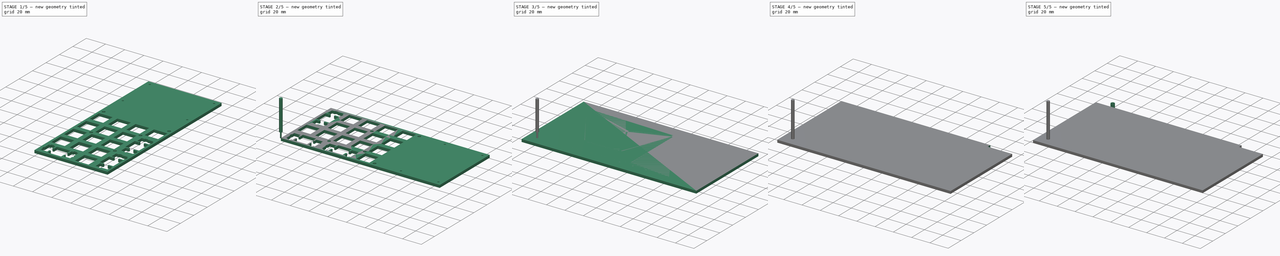
[diagram: build sequence overview — one tinted view per stage of 5, left to right]
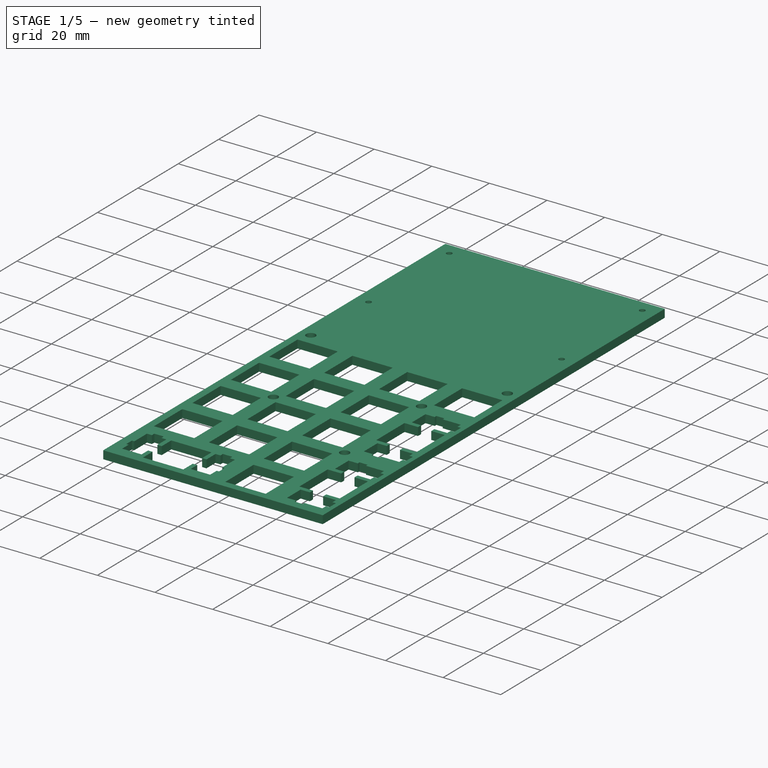
[diagram: stage 1 of 5 — iso view after this stage's code; geometry added in this stage tinted green]
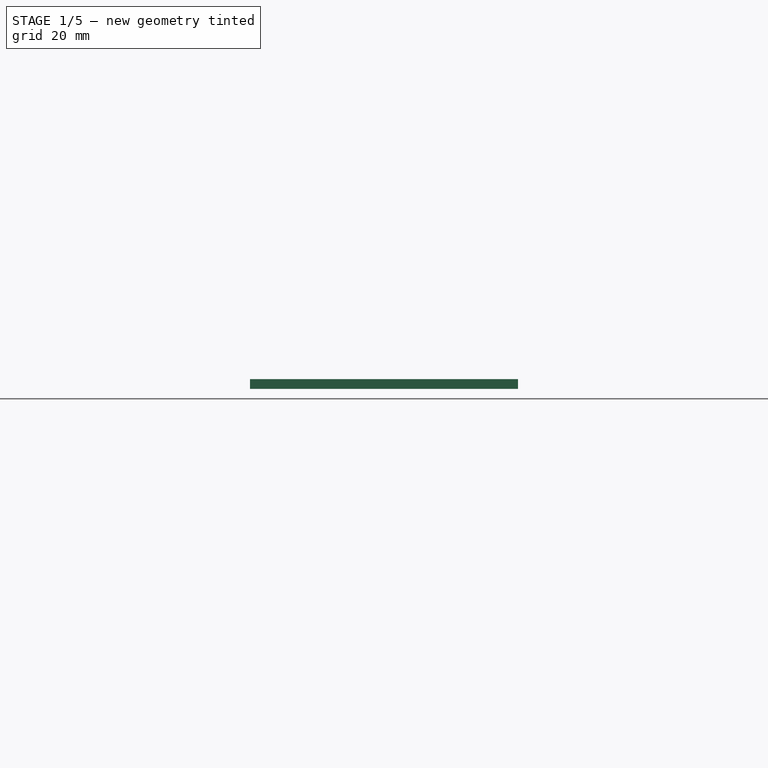
[diagram: stage 1 of 5 — front view after this stage's code; geometry added in this stage tinted green]
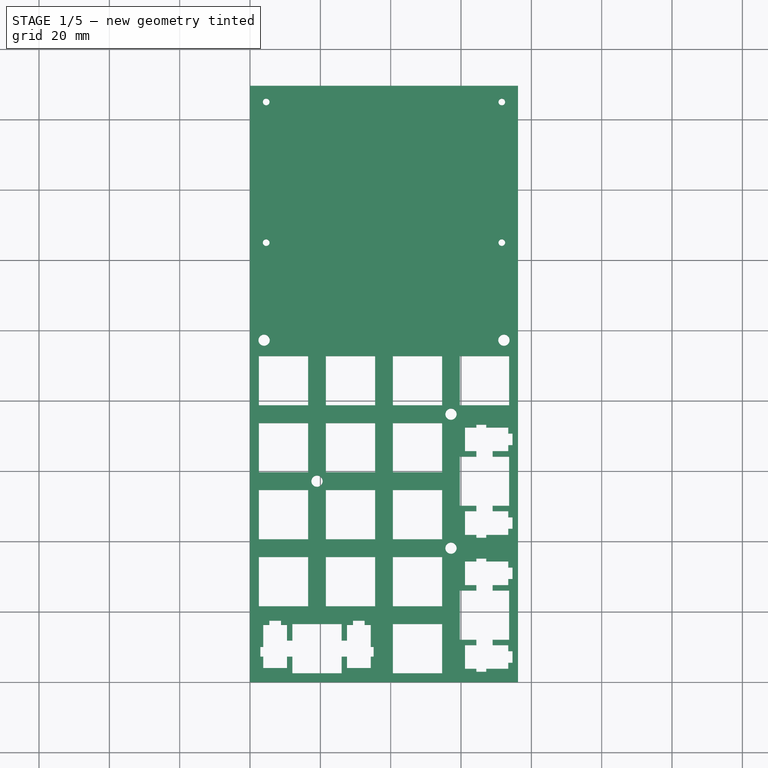
[diagram: stage 1 of 5 — top view after this stage's code; geometry added in this stage tinted green]
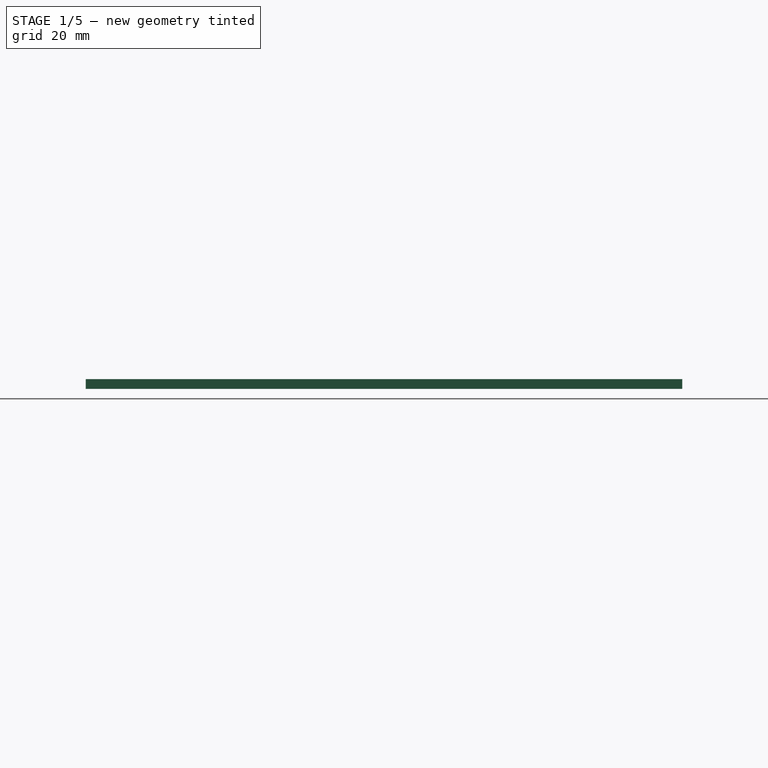
[diagram: stage 1 of 5 — right view after this stage's code; geometry added in this stage tinted green]
FCSTD DOCUMENT  (FreeCAD 1.1R44874 (Git))
Label: tactical-tenkey-case
License: All rights reserved
LicenseURL: https://en.wikipedia.org/wiki/All_rights_reserved
objects: Sketcher::SketchObject×12, Path::FeaturePython×11, PartDesign::Body×9, App::Point×9, PartDesign::Pad×7, PartDesign::SubShapeBinder×7, Part::FeaturePython×6, App::DocumentObjectGroup×6, App::FeaturePython×4, PartDesign::Pocket×3, PartDesign::Revolution×2, App::VarSet×1
note: 85 computed .brp shape members not serialized (recipe doc carries the construction recipe); baked Part::Feature solids carry a one-line shape summary decoded from their .brp

FEATURE [App::VarSet] VarSet  label="Dimensions"
  AcrylicThickness = 2.8
  Base_TiltAngle = 50
  BottomPlateLength = 143
  PlateWidth = 76.2
  ScrewType = 3.2
  StandoffHeight = 5
  StandoffHoleSize = 5.3
  StandoffSize = 2.25
  TopPlateLength = 169.6
FEATURE [Sketcher::SketchObject] Sketch
  ArcFitTolerance = 1e-06
  AttachmentSupport = -> [XY_Plane001]
  ExternalTypes = [0]
  FullyConstrained = true
  MakeInternals = false
  MapMode = 5
  _ExternalGeoVersion = 0
  expr: Constraints[10] = <<Dimensions>>.PlateWidth
  expr: Constraints[9] = <<Dimensions>>.TopPlateLength
  sketch-geometry (4):
    g0: LineSegment StartX=0 StartY=0 StartZ=0 EndX=76.2 EndY=0 EndZ=0
    g1: LineSegment StartX=76.2 StartY=0 StartZ=0 EndX=76.2 EndY=169.6 EndZ=0
    g2: LineSegment StartX=76.2 StartY=169.6 StartZ=0 EndX=0 EndY=169.6 EndZ=0
    g3: LineSegment StartX=0 StartY=169.6 StartZ=0 EndX=0 EndY=0 EndZ=0
  constraints (11):
    c: Coincident(g0,g1)
    c: Coincident(g1,g2)
    c: Coincident(g2,g3)
    c: Coincident(g3,g0)
    c: Horizontal(g0)
    c: Horizontal(g2)
    c: Vertical(g1)
    c: Vertical(g3)
    c: Coincident(g0,g-1)
    c: DistanceY(g1,g1) = 169.6
    c: DistanceX(g2,g2) = 76.2
FEATURE [PartDesign::Pad] Pad
  Direction = (0,0,1)
  Length = 2.8
  Length2 = 10
  Profile = -> Sketch
  ReferenceAxis = -> Sketch [N_Axis]
  Refine = true
  SideType = 0
  Suppressed = false
  Type = 0
  Type2 = 0
  expr: Length = <<Dimensions>>.AcrylicThickness
FEATURE [Sketcher::SketchObject] Sketch001
  ArcFitTolerance = 1e-06
  AttachmentSupport = -> [Pad]
  ExternalGeometry = -> [Pad]
  ExternalTypes = [0]
  FullyConstrained = false
  MakeInternals = false
  MapMode = 5
  Placement = pos=(0,0,2.8) rot=(0,0,1;0rad)
  _ExternalGeoVersion = 0
  sketch-geometry (168):
    g0: LineSegment [constr] StartX=76.2 StartY=0 StartZ=0 EndX=0 EndY=0 EndZ=0
    g1: LineSegment [constr] StartX=0 StartY=0 StartZ=0 EndX=0 EndY=95.2498 EndZ=0
    g2: LineSegment StartX=59.6746 StartY=92.7254 StartZ=0 EndX=73.6739 EndY=92.7254 EndZ=0
    g3: LineSegment StartX=73.6739 StartY=92.7254 StartZ=0 EndX=73.6739 EndY=78.7261 EndZ=0
    g4: LineSegment StartX=73.6739 StartY=78.7261 StartZ=0 EndX=59.6746 EndY=78.7261 EndZ=0
    g5: LineSegment StartX=59.6746 StartY=78.7261 StartZ=0 EndX=59.6746 EndY=92.7254 EndZ=0
    g6: LineSegment StartX=40.6246 StartY=92.7254 StartZ=0 EndX=54.6239 EndY=92.7254 EndZ=0
    g7: LineSegment StartX=54.6239 StartY=92.7254 StartZ=0 EndX=54.6239 EndY=78.7261 EndZ=0
    g8: LineSegment StartX=54.6239 StartY=78.7261 StartZ=0 EndX=40.6246 EndY=78.7261 EndZ=0
    g9: LineSegment StartX=40.6246 StartY=78.7261 StartZ=0 EndX=40.6246 EndY=92.7254 EndZ=0
    g10: LineSegment StartX=5.49838 StartY=17.4956 StartZ=0 EndX=5.49976 EndY=16.2953 EndZ=0
    g11: LineSegment StartX=5.49976 StartY=16.2953 StartZ=0 EndX=3.77447 EndY=16.2953 EndZ=0
    g12: LineSegment StartX=3.77447 StartY=16.2953 StartZ=0 EndX=3.77447 EndY=10.0252 EndZ=0
    g13: LineSegment StartX=3.77447 StartY=10.0252 StartZ=0 EndX=2.94901 EndY=10.0252 EndZ=0
    g14: LineSegment StartX=2.94901 StartY=10.0252 StartZ=0 EndX=2.94901 EndY=7.22504 EndZ=0
    g15: LineSegment StartX=2.94901 StartY=7.22504 StartZ=0 EndX=3.77447 EndY=7.22504 EndZ=0
    g16: LineSegment StartX=3.77447 StartY=7.22504 StartZ=0 EndX=3.77447 EndY=3.99494 EndZ=0
    g17: LineSegment StartX=3.77447 StartY=3.99494 StartZ=0 EndX=10.5241 EndY=3.99494 EndZ=0
    g18: LineSegment StartX=10.5241 StartY=3.99494 StartZ=0 EndX=10.5241 EndY=7.22504 EndZ=0
    g19: LineSegment StartX=10.5241 StartY=7.22504 StartZ=0 EndX=12.0496 EndY=7.22504 EndZ=0
    g20: LineSegment StartX=12.0496 StartY=7.22504 StartZ=0 EndX=12.0496 EndY=2.52595 EndZ=0
    g21: LineSegment StartX=12.0496 StartY=2.52595 StartZ=0 EndX=26.049 EndY=2.52595 EndZ=0
    g22: LineSegment StartX=26.049 StartY=2.52595 StartZ=0 EndX=26.049 EndY=7.22504 EndZ=0
    g23: LineSegment StartX=26.049 StartY=7.22504 StartZ=0 EndX=27.5745 EndY=7.22504 EndZ=0
    g24: LineSegment StartX=27.5745 StartY=7.22504 StartZ=0 EndX=27.5745 EndY=3.99494 EndZ=0
    g25: LineSegment StartX=27.5745 StartY=3.99494 StartZ=0 EndX=34.3242 EndY=3.99494 EndZ=0
    g26: LineSegment StartX=34.3242 StartY=3.99494 StartZ=0 EndX=34.3242 EndY=7.22504 EndZ=0
    g27: LineSegment StartX=34.3242 StartY=7.22504 StartZ=0 EndX=35.1496 EndY=7.22504 EndZ=0
    g28: LineSegment StartX=35.1496 StartY=7.22504 StartZ=0 EndX=35.1496 EndY=10.0252 EndZ=0
    g29: LineSegment StartX=35.1496 StartY=10.0252 StartZ=0 EndX=34.3242 EndY=10.0252 EndZ=0
    g30: LineSegment StartX=34.3242 StartY=10.0252 StartZ=0 EndX=34.3242 EndY=16.2953 EndZ=0
    g31: LineSegment StartX=34.3242 StartY=16.2953 StartZ=0 EndX=32.5989 EndY=16.2953 EndZ=0
    g32: LineSegment StartX=32.5989 StartY=16.2953 StartZ=0 EndX=32.5989 EndY=17.4956 EndZ=0
    g33: LineSegment StartX=32.5989 StartY=17.4956 StartZ=0 EndX=29.2998 EndY=17.4956 EndZ=0
    g34: LineSegment StartX=29.2998 StartY=17.4956 StartZ=0 EndX=29.2998 EndY=16.2953 EndZ=0
    g35: LineSegment StartX=29.2998 StartY=16.2953 StartZ=0 EndX=27.5745 EndY=16.2953 EndZ=0
    g36: LineSegment StartX=27.5745 StartY=16.2953 StartZ=0 EndX=27.5745 EndY=11.8249 EndZ=0
    g37: LineSegment StartX=27.5745 StartY=11.8249 StartZ=0 EndX=26.049 EndY=11.8249 EndZ=0
    g38: LineSegment StartX=26.049 StartY=11.8249 StartZ=0 EndX=26.049 EndY=16.5254 EndZ=0
    g39: LineSegment StartX=26.049 StartY=16.5254 StartZ=0 EndX=12.0496 EndY=16.5254 EndZ=0
    g40: LineSegment StartX=12.0496 StartY=16.5254 StartZ=0 EndX=12.0496 EndY=11.8249 EndZ=0
    g41: LineSegment StartX=12.0496 StartY=11.8249 StartZ=0 EndX=10.5241 EndY=11.8249 EndZ=0
    g42: LineSegment StartX=10.5241 StartY=11.8249 StartZ=0 EndX=10.5241 EndY=16.2953 EndZ=0
    g43: LineSegment StartX=10.5241 StartY=16.2953 StartZ=0 EndX=8.79876 EndY=16.2953 EndZ=0
    g44: LineSegment StartX=8.79876 StartY=16.2953 StartZ=0 EndX=8.79876 EndY=17.4956 EndZ=0
    g45: LineSegment StartX=8.79876 StartY=17.4956 StartZ=0 EndX=5.49838 EndY=17.4956 EndZ=0
    g46: LineSegment StartX=40.6246 StartY=16.5254 StartZ=0 EndX=54.6239 EndY=16.5254 EndZ=0
    g47: LineSegment StartX=54.6239 StartY=16.5254 StartZ=0 EndX=54.6239 EndY=2.52595 EndZ=0
    g48: LineSegment StartX=54.6239 StartY=2.52595 StartZ=0 EndX=40.6246 EndY=2.52595 EndZ=0
    g49: LineSegment StartX=40.6246 StartY=2.52595 StartZ=0 EndX=40.6246 EndY=16.5254 EndZ=0
    g50: LineSegment StartX=64.375 StartY=35.151 StartZ=0 EndX=64.375 EndY=34.3256 EndZ=0
    g51: LineSegment StartX=64.375 StartY=34.3256 StartZ=0 EndX=61.145 EndY=34.3256 EndZ=0
    g52: LineSegment StartX=61.145 StartY=34.3256 StartZ=0 EndX=61.145 EndY=27.5759 EndZ=0
    g53: LineSegment StartX=61.145 StartY=27.5759 StartZ=0 EndX=64.375 EndY=27.5759 EndZ=0
    g54: LineSegment StartX=64.375 StartY=27.5759 StartZ=0 EndX=64.375 EndY=26.0504 EndZ=0
    g55: LineSegment StartX=64.375 StartY=26.0504 StartZ=0 EndX=59.6746 EndY=26.0504 EndZ=0
    g56: LineSegment StartX=59.6746 StartY=26.0504 StartZ=0 EndX=59.6746 EndY=12.0509 EndZ=0
    g57: LineSegment StartX=59.6746 StartY=12.0509 StartZ=0 EndX=64.375 EndY=12.0509 EndZ=0
    g58: LineSegment StartX=64.375 StartY=12.0509 StartZ=0 EndX=64.375 EndY=10.5254 EndZ=0
    g59: LineSegment StartX=64.375 StartY=10.5254 StartZ=0 EndX=61.145 EndY=10.5254 EndZ=0
    g60: LineSegment StartX=61.145 StartY=10.5254 StartZ=0 EndX=61.145 EndY=3.77583 EndZ=0
    g61: LineSegment StartX=61.145 StartY=3.77583 StartZ=0 EndX=64.375 EndY=3.77583 EndZ=0
    g62: LineSegment StartX=64.375 StartY=3.77583 StartZ=0 EndX=64.375 EndY=2.95038 EndZ=0
    g63: LineSegment StartX=64.375 StartY=2.95038 StartZ=0 EndX=67.174 EndY=2.95038 EndZ=0
    g64: LineSegment StartX=67.174 StartY=2.95038 StartZ=0 EndX=67.174 EndY=3.77583 EndZ=0
    g65: LineSegment StartX=67.174 StartY=3.77583 StartZ=0 EndX=73.4439 EndY=3.77583 EndZ=0
    g66: LineSegment StartX=73.4439 StartY=3.77583 StartZ=0 EndX=73.4439 EndY=5.50112 EndZ=0
    g67: LineSegment StartX=73.4439 StartY=5.50112 StartZ=0 EndX=74.644 EndY=5.50112 EndZ=0
    g68: LineSegment StartX=74.644 StartY=5.50112 StartZ=0 EndX=74.644 EndY=8.80016 EndZ=0
    g69: LineSegment StartX=74.644 StartY=8.80016 StartZ=0 EndX=73.4439 EndY=8.80016 EndZ=0
    g70: LineSegment StartX=73.4439 StartY=8.80016 StartZ=0 EndX=73.4439 EndY=10.5254 EndZ=0
    g71: LineSegment StartX=73.4439 StartY=10.5254 StartZ=0 EndX=68.9749 EndY=10.5254 EndZ=0
    g72: LineSegment StartX=68.9749 StartY=10.5254 StartZ=0 EndX=68.9749 EndY=12.0509 EndZ=0
    g73: LineSegment StartX=68.9749 StartY=12.0509 StartZ=0 EndX=73.6739 EndY=12.0509 EndZ=0
    g74: LineSegment StartX=73.6739 StartY=12.0509 StartZ=0 EndX=73.6739 EndY=26.0504 EndZ=0
    g75: LineSegment StartX=73.6739 StartY=26.0504 StartZ=0 EndX=68.9749 EndY=26.0504 EndZ=0
    g76: LineSegment StartX=68.9749 StartY=26.0504 StartZ=0 EndX=68.9749 EndY=27.5759 EndZ=0
    g77: LineSegment StartX=68.9749 StartY=27.5759 StartZ=0 EndX=73.4439 EndY=27.5759 EndZ=0
    g78: LineSegment StartX=73.4439 StartY=27.5759 StartZ=0 EndX=73.4439 EndY=29.3012 EndZ=0
    g79: LineSegment StartX=73.4439 StartY=29.3012 StartZ=0 EndX=74.644 EndY=29.3012 EndZ=0
    g80: LineSegment StartX=74.644 StartY=29.3012 StartZ=0 EndX=74.644 EndY=32.6002 EndZ=0
    g81: LineSegment StartX=74.644 StartY=32.6002 StartZ=0 EndX=73.4439 EndY=32.6002 EndZ=0
    g82: LineSegment StartX=73.4439 StartY=32.6002 StartZ=0 EndX=73.4439 EndY=34.3256 EndZ=0
    g83: LineSegment StartX=73.4439 StartY=34.3256 StartZ=0 EndX=67.174 EndY=34.3256 EndZ=0
    g84: LineSegment StartX=67.174 StartY=34.3256 StartZ=0 EndX=67.174 EndY=35.151 EndZ=0
    g85: LineSegment StartX=67.174 StartY=35.151 StartZ=0 EndX=64.375 EndY=35.151 EndZ=0
    g86: LineSegment StartX=2.52456 StartY=35.5753 StartZ=0 EndX=16.5241 EndY=35.5753 EndZ=0
    g87: LineSegment StartX=16.5241 StartY=35.5753 StartZ=0 EndX=16.5241 EndY=21.5759 EndZ=0
    g88: LineSegment StartX=16.5241 StartY=21.5759 StartZ=0 EndX=2.52456 EndY=21.5759 EndZ=0
    g89: LineSegment StartX=2.52456 StartY=21.5759 StartZ=0 EndX=2.52456 EndY=35.5753 EndZ=0
    g90: LineSegment StartX=21.5746 StartY=35.5753 StartZ=0 EndX=35.5739 EndY=35.5753 EndZ=0
    g91: LineSegment StartX=35.5739 StartY=35.5753 StartZ=0 EndX=35.5739 EndY=21.5759 EndZ=0
    g92: LineSegment StartX=35.5739 StartY=21.5759 StartZ=0 EndX=21.5746 EndY=21.5759 EndZ=0
    g93: LineSegment StartX=21.5746 StartY=21.5759 StartZ=0 EndX=21.5746 EndY=35.5753 EndZ=0
    g94: LineSegment StartX=40.6246 StartY=35.5753 StartZ=0 EndX=54.6239 EndY=35.5753 EndZ=0
    g95: LineSegment StartX=54.6239 StartY=35.5753 StartZ=0 EndX=54.6239 EndY=21.5759 EndZ=0
    g96: LineSegment StartX=54.6239 StartY=21.5759 StartZ=0 EndX=40.6246 EndY=21.5759 EndZ=0
    g97: LineSegment StartX=40.6246 StartY=21.5759 StartZ=0 EndX=40.6246 EndY=35.5753 EndZ=0
    g98: LineSegment StartX=2.52456 StartY=54.6254 StartZ=0 EndX=16.5241 EndY=54.6254 EndZ=0
    g99: LineSegment StartX=16.5241 StartY=54.6254 StartZ=0 EndX=16.5241 EndY=40.6261 EndZ=0
    g100: LineSegment StartX=16.5241 StartY=40.6261 StartZ=0 EndX=2.52456 EndY=40.6261 EndZ=0
    g101: LineSegment StartX=2.52456 StartY=40.6261 StartZ=0 EndX=2.52456 EndY=54.6254 EndZ=0
    g102: LineSegment StartX=21.5746 StartY=54.6254 StartZ=0 EndX=35.5739 EndY=54.6254 EndZ=0
    g103: LineSegment StartX=35.5739 StartY=54.6254 StartZ=0 EndX=35.5739 EndY=40.6261 EndZ=0
    g104: LineSegment StartX=35.5739 StartY=40.6261 StartZ=0 EndX=21.5746 EndY=40.6261 EndZ=0
    g105: LineSegment StartX=21.5746 StartY=40.6261 StartZ=0 EndX=21.5746 EndY=54.6254 EndZ=0
    g106: LineSegment StartX=40.6246 StartY=54.6254 StartZ=0 EndX=54.6239 EndY=54.6254 EndZ=0
    g107: LineSegment StartX=54.6239 StartY=54.6254 StartZ=0 EndX=54.6239 EndY=40.6261 EndZ=0
    g108: LineSegment StartX=54.6239 StartY=40.6261 StartZ=0 EndX=40.6246 EndY=40.6261 EndZ=0
    g109: LineSegment StartX=40.6246 StartY=40.6261 StartZ=0 EndX=40.6246 EndY=54.6254 EndZ=0
    g110: LineSegment StartX=64.375 StartY=73.251 StartZ=0 EndX=64.375 EndY=72.4255 EndZ=0
    g111: LineSegment StartX=64.375 StartY=72.4255 StartZ=0 EndX=61.145 EndY=72.4255 EndZ=0
    g112: LineSegment StartX=61.145 StartY=72.4255 StartZ=0 EndX=61.145 EndY=65.6758 EndZ=0
    g113: LineSegment StartX=61.145 StartY=65.6758 StartZ=0 EndX=64.375 EndY=65.6758 EndZ=0
    g114: LineSegment StartX=64.375 StartY=65.6758 StartZ=0 EndX=64.375 EndY=64.1504 EndZ=0
    g115: LineSegment StartX=64.375 StartY=64.1504 StartZ=0 EndX=59.6746 EndY=64.1504 EndZ=0
    g116: LineSegment StartX=59.6746 StartY=64.1504 StartZ=0 EndX=59.6746 EndY=50.1511 EndZ=0
    g117: LineSegment StartX=59.6746 StartY=50.1511 StartZ=0 EndX=64.375 EndY=50.1511 EndZ=0
    g118: LineSegment StartX=64.375 StartY=50.1511 StartZ=0 EndX=64.375 EndY=48.6253 EndZ=0
    g119: LineSegment StartX=64.375 StartY=48.6253 StartZ=0 EndX=61.145 EndY=48.6253 EndZ=0
    g120: LineSegment StartX=61.145 StartY=48.6253 StartZ=0 EndX=61.145 EndY=41.876 EndZ=0
    g121: LineSegment StartX=61.145 StartY=41.876 StartZ=0 EndX=64.375 EndY=41.876 EndZ=0
    g122: LineSegment StartX=64.375 StartY=41.876 StartZ=0 EndX=64.375 EndY=41.0505 EndZ=0
    g123: LineSegment StartX=64.375 StartY=41.0505 StartZ=0 EndX=67.174 EndY=41.0505 EndZ=0
    g124: LineSegment StartX=67.174 StartY=41.0505 StartZ=0 EndX=67.174 EndY=41.876 EndZ=0
    g125: LineSegment StartX=67.174 StartY=41.876 StartZ=0 EndX=73.4439 EndY=41.876 EndZ=0
    g126: LineSegment StartX=73.4439 StartY=41.876 StartZ=0 EndX=73.4439 EndY=43.601 EndZ=0
    g127: LineSegment StartX=73.4439 StartY=43.601 StartZ=0 EndX=74.644 EndY=43.601 EndZ=0
    g128: LineSegment StartX=74.644 StartY=43.601 StartZ=0 EndX=74.644 EndY=46.9002 EndZ=0
    g129: LineSegment StartX=74.644 StartY=46.9002 StartZ=0 EndX=73.4439 EndY=46.9002 EndZ=0
    g130: LineSegment StartX=73.4439 StartY=46.9002 StartZ=0 EndX=73.4439 EndY=48.6253 EndZ=0
    g131: LineSegment StartX=73.4439 StartY=48.6253 StartZ=0 EndX=68.9749 EndY=48.6253 EndZ=0
    g132: LineSegment StartX=68.9749 StartY=48.6253 StartZ=0 EndX=68.9749 EndY=50.1511 EndZ=0
    g133: LineSegment StartX=68.9749 StartY=50.1511 StartZ=0 EndX=73.6739 EndY=50.1511 EndZ=0
    g134: LineSegment StartX=73.6739 StartY=50.1511 StartZ=0 EndX=73.6739 EndY=64.1504 EndZ=0
    g135: LineSegment StartX=73.6739 StartY=64.1504 StartZ=0 EndX=68.9749 EndY=64.1504 EndZ=0
    g136: LineSegment StartX=68.9749 StartY=64.1504 StartZ=0 EndX=68.9749 EndY=65.6758 EndZ=0
    g137: LineSegment StartX=68.9749 StartY=65.6758 StartZ=0 EndX=73.4439 EndY=65.6758 EndZ=0
    g138: LineSegment StartX=73.4439 StartY=65.6758 StartZ=0 EndX=73.4439 EndY=67.4012 EndZ=0
    g139: LineSegment StartX=73.4439 StartY=67.4012 StartZ=0 EndX=74.644 EndY=67.4012 EndZ=0
    g140: LineSegment StartX=74.644 StartY=67.4012 StartZ=0 EndX=74.644 EndY=70.7018 EndZ=0
    g141: LineSegment StartX=74.644 StartY=70.7018 StartZ=0 EndX=73.4439 EndY=70.7004 EndZ=0
    g142: LineSegment StartX=73.4439 StartY=70.7004 StartZ=0 EndX=73.4439 EndY=72.4255 EndZ=0
    g143: LineSegment StartX=73.4439 StartY=72.4255 StartZ=0 EndX=67.174 EndY=72.4255 EndZ=0
    g144: LineSegment StartX=67.174 StartY=72.4255 StartZ=0 EndX=67.174 EndY=73.251 EndZ=0
    g145: LineSegment StartX=67.174 StartY=73.251 StartZ=0 EndX=64.375 EndY=73.251 EndZ=0
    g146: LineSegment StartX=2.52456 StartY=73.6754 StartZ=0 EndX=16.5241 EndY=73.6754 EndZ=0
    g147: LineSegment StartX=16.5241 StartY=73.6754 StartZ=0 EndX=16.5241 EndY=59.6761 EndZ=0
    g148: LineSegment StartX=16.5241 StartY=59.6761 StartZ=0 EndX=2.52456 EndY=59.6761 EndZ=0
    g149: LineSegment StartX=2.52456 StartY=59.6761 StartZ=0 EndX=2.52456 EndY=73.6754 EndZ=0
    g150: LineSegment StartX=21.5746 StartY=73.6754 StartZ=0 EndX=35.5739 EndY=73.6754 EndZ=0
    g151: LineSegment StartX=35.5739 StartY=73.6754 StartZ=0 EndX=35.5739 EndY=59.6761 EndZ=0
    g152: LineSegment StartX=35.5739 StartY=59.6761 StartZ=0 EndX=21.5746 EndY=59.6761 EndZ=0
    g153: LineSegment StartX=21.5746 StartY=59.6761 StartZ=0 EndX=21.5746 EndY=73.6754 EndZ=0
    g154: LineSegment StartX=40.6246 StartY=73.6754 StartZ=0 EndX=54.6239 EndY=73.6754 EndZ=0
    g155: LineSegment StartX=54.6239 StartY=73.6754 StartZ=0 EndX=54.6239 EndY=59.6761 EndZ=0
    g156: LineSegment StartX=54.6239 StartY=59.6761 StartZ=0 EndX=40.6246 EndY=59.6761 EndZ=0
    g157: LineSegment StartX=40.6246 StartY=59.6761 StartZ=0 EndX=40.6246 EndY=73.6754 EndZ=0
    g158: LineSegment StartX=2.52456 StartY=92.7254 StartZ=0 EndX=16.5241 EndY=92.7254 EndZ=0
    g159: LineSegment StartX=16.5241 StartY=92.7254 StartZ=0 EndX=16.5241 EndY=78.7261 EndZ=0
    g160: LineSegment StartX=16.5241 StartY=78.7261 StartZ=0 EndX=2.52456 EndY=78.7261 EndZ=0
    g161: LineSegment StartX=2.52456 StartY=78.7261 StartZ=0 EndX=2.52456 EndY=92.7254 EndZ=0
    g162: LineSegment StartX=21.5746 StartY=92.7254 StartZ=0 EndX=35.5739 EndY=92.7254 EndZ=0
    g163: LineSegment StartX=35.5739 StartY=92.7254 StartZ=0 EndX=35.5739 EndY=78.7261 EndZ=0
    g164: LineSegment StartX=35.5739 StartY=78.7261 StartZ=0 EndX=21.5746 EndY=78.7261 EndZ=0
    g165: LineSegment StartX=21.5746 StartY=78.7261 StartZ=0 EndX=21.5746 EndY=92.7254 EndZ=0
    g166: LineSegment [constr] StartX=0 StartY=95.2498 StartZ=0 EndX=76.2 EndY=95.2498 EndZ=0
    g167: LineSegment [constr] StartX=76.2 StartY=0 StartZ=0 EndX=76.2 EndY=95.2498 EndZ=0
  constraints (171):
    c: Coincident(g0,g1)
    c: Coincident(g2,g3)
    c: Coincident(g3,g4)
    c: Coincident(g4,g5)
    c: Coincident(g5,g2)
    c: Coincident(g6,g7)
    c: Coincident(g7,g8)
    c: Coincident(g8,g9)
    c: Coincident(g9,g6)
    c: Coincident(g10,g11)
    c: Coincident(g11,g12)
    c: Coincident(g12,g13)
    c: Coincident(g13,g14)
    c: Coincident(g14,g15)
    c: Coincident(g15,g16)
    c: Coincident(g16,g17)
    c: Coincident(g17,g18)
    c: Coincident(g18,g19)
    c: Coincident(g19,g20)
    c: Coincident(g20,g21)
    c: Coincident(g21,g22)
    c: Coincident(g22,g23)
    c: Coincident(g23,g24)
    c: Coincident(g24,g25)
    c: Coincident(g25,g26)
    c: Coincident(g26,g27)
    c: Coincident(g27,g28)
    c: Coincident(g28,g29)
    c: Coincident(g29,g30)
    c: Coincident(g30,g31)
    c: Coincident(g31,g32)
    c: Coincident(g32,g33)
    c: Coincident(g33,g34)
    c: Coincident(g34,g35)
    c: Coincident(g35,g36)
    c: Coincident(g36,g37)
    c: Coincident(g37,g38)
    c: Coincident(g38,g39)
    c: Coincident(g39,g40)
    c: Coincident(g40,g41)
    c: Coincident(g41,g42)
    c: Coincident(g42,g43)
    c: Coincident(g43,g44)
    c: Coincident(g44,g45)
    c: Coincident(g45,g10)
    c: Coincident(g46,g47)
    c: Coincident(g47,g48)
    c: Coincident(g48,g49)
    c: Coincident(g49,g46)
    c: Coincident(g50,g51)
    c: Coincident(g51,g52)
    c: Coincident(g52,g53)
    c: Coincident(g53,g54)
    c: Coincident(g54,g55)
    c: Coincident(g55,g56)
    c: Coincident(g56,g57)
    c: Coincident(g57,g58)
    c: Coincident(g58,g59)
    c: Coincident(g59,g60)
    c: Coincident(g60,g61)
    c: Coincident(g61,g62)
    c: Coincident(g62,g63)
    c: Coincident(g63,g64)
    c: Coincident(g64,g65)
    c: Coincident(g65,g66)
    c: Coincident(g66,g67)
    c: Coincident(g67,g68)
    c: Coincident(g68,g69)
    c: Coincident(g69,g70)
    c: Coincident(g70,g71)
    c: Coincident(g71,g72)
    c: Coincident(g72,g73)
    c: Coincident(g73,g74)
    c: Coincident(g74,g75)
    c: Coincident(g75,g76)
    c: Coincident(g76,g77)
    c: Coincident(g77,g78)
    c: Coincident(g78,g79)
    c: Coincident(g79,g80)
    c: Coincident(g80,g81)
    c: Coincident(g81,g82)
    c: Coincident(g82,g83)
    c: Coincident(g83,g84)
    c: Coincident(g84,g85)
    c: Coincident(g85,g50)
    c: Coincident(g86,g87)
    c: Coincident(g87,g88)
    c: Coincident(g88,g89)
    c: Coincident(g89,g86)
    c: Coincident(g90,g91)
    c: Coincident(g91,g92)
    c: Coincident(g92,g93)
    c: Coincident(g93,g90)
    c: Coincident(g94,g95)
    c: Coincident(g95,g96)
    c: Coincident(g96,g97)
    c: Coincident(g97,g94)
    c: Coincident(g98,g99)
    c: Coincident(g99,g100)
    c: Coincident(g100,g101)
    c: Coincident(g101,g98)
    c: Coincident(g102,g103)
    c: Coincident(g103,g104)
    c: Coincident(g104,g105)
    c: Coincident(g105,g102)
    c: Coincident(g106,g107)
    c: Coincident(g107,g108)
    c: Coincident(g108,g109)
    c: Coincident(g109,g106)
    c: Coincident(g110,g111)
    c: Coincident(g111,g112)
    c: Coincident(g112,g113)
    c: Coincident(g113,g114)
    c: Coincident(g114,g115)
    c: Coincident(g115,g116)
    c: Coincident(g116,g117)
    c: Coincident(g117,g118)
    c: Coincident(g118,g119)
    c: Coincident(g119,g120)
    c: Coincident(g120,g121)
    c: Coincident(g121,g122)
    c: Coincident(g122,g123)
    c: Coincident(g123,g124)
    c: Coincident(g124,g125)
    c: Coincident(g125,g126)
    c: Coincident(g126,g127)
    c: Coincident(g127,g128)
    c: Coincident(g128,g129)
    c: Coincident(g129,g130)
    c: Coincident(g130,g131)
    c: Coincident(g131,g132)
    c: Coincident(g132,g133)
    c: Coincident(g133,g134)
    c: Coincident(g134,g135)
    c: Coincident(g135,g136)
    c: Coincident(g136,g137)
    c: Coincident(g137,g138)
    c: Coincident(g138,g139)
    c: Coincident(g139,g140)
    c: Coincident(g140,g141)
    c: Coincident(g141,g142)
    c: Coincident(g142,g143)
    c: Coincident(g143,g144)
    c: Coincident(g144,g145)
    c: Coincident(g145,g110)
    c: Coincident(g146,g147)
    c: Coincident(g147,g148)
    c: Coincident(g148,g149)
    c: Coincident(g149,g146)
    c: Coincident(g150,g151)
    c: Coincident(g151,g152)
    c: Coincident(g152,g153)
    c: Coincident(g153,g150)
    c: Coincident(g154,g155)
    c: Coincident(g155,g156)
    c: Coincident(g156,g157)
    c: Coincident(g157,g154)
    c: Coincident(g158,g159)
    c: Coincident(g159,g160)
    c: Coincident(g160,g161)
    c: Coincident(g161,g158)
    c: Coincident(g162,g163)
    c: Coincident(g163,g164)
    c: Coincident(g164,g165)
    c: Coincident(g165,g162)
    c: Coincident(g166,g1)
    c: PointOnObject(g166,g-5)
    c: Horizontal(g166)
    c: Coincident(g167,g0)
    c: Coincident(g167,g166)
    c: Vertical(g167)
FEATURE [PartDesign::Pocket] Pocket
  BaseFeature = -> Pad
  Direction = (0,0,-1)
  Length = 5
  Length2 = 5
  Profile = -> Sketch001
  ReferenceAxis = -> Sketch001 [N_Axis]
  Refine = true
  SideType = 0
  Suppressed = false
  Type = 0
  Type2 = 0
FEATURE [Sketcher::SketchObject] Sketch002
  ArcFitTolerance = 1e-06
  AttachmentSupport = -> [Pocket]
  ExternalGeometry = -> [Pocket]
  ExternalTypes = [0]
  FullyConstrained = true
  MakeInternals = false
  MapMode = 5
  Placement = pos=(0,0,2.8) rot=(0,0,1;0rad)
  _ExternalGeoVersion = 0
  expr: Constraints[18] = <<Dimensions>>.ScrewType
  expr: Constraints[42] = <<Dimensions>>.ScrewType
  expr: Constraints[44] = <<Dimensions>>.ScrewType
  expr: Constraints[6] = <<Dimensions>>.ScrewType
  expr: Constraints[8] = <<Dimensions>>.ScrewType
  sketch-geometry (19):
    g0: LineSegment [constr] StartX=59.6746 StartY=78.7261 StartZ=0 EndX=54.6239 EndY=73.6754 EndZ=0
    g1: LineSegment [constr] StartX=40.6246 StartY=40.6261 StartZ=0 EndX=35.5739 EndY=35.5753 EndZ=0
    g2: LineSegment [constr] StartX=21.5746 StartY=59.6761 StartZ=0 EndX=16.5241 EndY=54.6254 EndZ=0
    g3: Circle CenterX=19.0494 CenterY=57.1508 CenterZ=0 NormalX=0 NormalY=0 NormalZ=1 AngleXU=0 Radius=1.6
    g4: Circle CenterX=57.1493 CenterY=76.2008 CenterZ=0 NormalX=0 NormalY=0 NormalZ=1 AngleXU=0 Radius=1.6
    g5: LineSegment [constr] StartX=38.0993 StartY=38.1007 StartZ=0 EndX=76.2 EndY=38.1007 EndZ=0
    g6: LineSegment [constr] StartX=57.1493 StartY=76.2008 StartZ=0 EndX=57.1493 EndY=0 EndZ=0
    g7: GeomPoint [constr] X=57.1493 Y=38.1007 Z=0
    g8: Circle CenterX=57.1493 CenterY=38.1007 CenterZ=0 NormalX=0 NormalY=0 NormalZ=1 AngleXU=0 Radius=1.6
    g9: LineSegment [constr] StartX=0 StartY=0 StartZ=0 EndX=4 EndY=0 EndZ=0
    g10: LineSegment [constr] StartX=4 StartY=0 StartZ=0 EndX=4 EndY=97.25 EndZ=0
    g11: LineSegment [constr] StartX=4 StartY=97.25 StartZ=0 EndX=0 EndY=97.25 EndZ=0
    g12: LineSegment [constr] StartX=0 StartY=97.25 StartZ=0 EndX=0 EndY=0 EndZ=0
    g13: LineSegment [constr] StartX=76.2 StartY=0 StartZ=0 EndX=76.2 EndY=97.25 EndZ=0
    g14: LineSegment [constr] StartX=76.2 StartY=97.25 StartZ=0 EndX=72.2 EndY=97.25 EndZ=0
    g15: LineSegment [constr] StartX=72.2 StartY=97.25 StartZ=0 EndX=72.2 EndY=0 EndZ=0
    g16: LineSegment [constr] StartX=72.2 StartY=0 StartZ=0 EndX=76.2 EndY=0 EndZ=0
    g17: Circle CenterX=4 CenterY=97.25 CenterZ=0 NormalX=0 NormalY=0 NormalZ=1 AngleXU=0 Radius=1.6
    g18: Circle CenterX=72.2 CenterY=97.25 CenterZ=0 NormalX=0 NormalY=0 NormalZ=1 AngleXU=0 Radius=1.6
  constraints (46):
    c: Coincident(g0,g-5)
    c: Coincident(g0,g-6)
    c: Coincident(g1,g-7)
    c: Coincident(g1,g-8)
    c: Coincident(g2,g-3)
    c: Coincident(g2,g-4)
    c: Diameter(g3) = 3.2
    c: Symmetric(g2,g2,g3)
    c: Diameter(g4) = 3.2
    c: Symmetric(g0,g0,g4)
    c: Symmetric(g1,g1,g5)
    c: PointOnObject(g5,g-9)
    c: Horizontal(g5)
    c: Symmetric(g0,g0,g6)
    c: PointOnObject(g6,g-10)
    c: Vertical(g6)
    c: PointOnObject(g7,g5)
    c: PointOnObject(g7,g6)
    c: Diameter(g8) = 3.2
    c: Coincident(g8,g7)
    c: Coincident(g9,g10)
    c: Coincident(g10,g11)
    c: Coincident(g11,g12)
    c: Coincident(g12,g9)
    c: Horizontal(g9)
    c: Horizontal(g11)
    c: Vertical(g10)
    c: Vertical(g12)
    c: Distance(g10,g12) = 4
    c: Distance(g9,g11) = 97.25
    c: Coincident(g9,g-1)
    c: Coincident(g13,g14)
    c: Coincident(g14,g15)
    c: Coincident(g15,g16)
    c: Coincident(g16,g13)
    c: Vertical(g13)
    c: Vertical(g15)
    c: Horizontal(g14)
    c: Horizontal(g16)
    c: Distance(g13,g15) = 4
    c: Distance(g14,g16) = 97.25
    c: Coincident(g13,g-10)
    c: Diameter(g17) = 3.2
    c: Coincident(g17,g10)
    c: Diameter(g18) = 3.2
    c: Coincident(g18,g14)
FEATURE [PartDesign::Pocket] Pocket001
  BaseFeature = -> Pocket
  Direction = (0,0,-1)
  Length = 0
  Length2 = 5
  Profile = -> Sketch002
  ReferenceAxis = -> Sketch002 [N_Axis]
  Refine = true
  SideType = 0
  Suppressed = false
  Type = 1
  Type2 = 0
FEATURE [Path::FeaturePython] TC__5mm_Endmill001  label="TC: 5mm Endmill"  # Path/CAM operation (typed FeaturePython)
  HorizFeed = 4.16667
  HorizRapid = 0
  SpindleDir = 0
  SpindleSpeed = 12000
  Tool = -> Endmill001
  ToolNumber = 1
  VertFeed = 1
  VertRapid = 0
  expr: HorizRapid = SetupSheet001.HorizRapid
  expr: VertRapid = SetupSheet001.VertRapid
FEATURE [App::DocumentObjectGroup] Tools001
  Group = -> [TC__5mm_Endmill001]
FEATURE [Sketcher::SketchObject] Sketch011
  ArcFitTolerance = 1e-06
  AttachmentSupport = -> [Pocket001]
  ExternalGeometry = -> [Pocket001]
  ExternalTypes = [0,0]
  FullyConstrained = true
  MakeInternals = false
  MapMode = 5
  Placement = pos=(0,0,2.8) rot=(0,0,1;0rad)
  _ExternalGeoVersion = 1
  sketch-geometry (10):
    g0: LineSegment [constr] StartX=0 StartY=0 StartZ=0 EndX=0 EndY=125 EndZ=0
    g1: LineSegment [constr] StartX=0 StartY=125 StartZ=0 EndX=76.2 EndY=125 EndZ=0
    g2: Circle CenterX=4.6 CenterY=125 CenterZ=0 NormalX=0 NormalY=0 NormalZ=1 AngleXU=0 Radius=0.95
    g3: Circle CenterX=71.6 CenterY=125 CenterZ=0 NormalX=0 NormalY=0 NormalZ=1 AngleXU=0 Radius=0.95
    g4: LineSegment [constr] StartX=4.6 StartY=125 StartZ=0 EndX=71.6 EndY=125 EndZ=0
    g5: GeomPoint [constr] X=38.1 Y=125 Z=0
    g6: LineSegment [constr] StartX=4.6 StartY=125 StartZ=0 EndX=4.6 EndY=165 EndZ=0
    g7: LineSegment [constr] StartX=4.6 StartY=165 StartZ=0 EndX=71.6 EndY=165 EndZ=0
    g8: Circle CenterX=4.6 CenterY=165 CenterZ=0 NormalX=0 NormalY=0 NormalZ=1 AngleXU=0 Radius=0.95
    g9: Circle CenterX=71.6 CenterY=165 CenterZ=0 NormalX=0 NormalY=0 NormalZ=1 AngleXU=0 Radius=0.95
  constraints (24):
    c: Distance(g0) = 125
    c: Coincident(g0,g-3)
    c: PointOnObject(g0,g-3)
    c: Coincident(g1,g0)
    c: PointOnObject(g1,g-4)
    c: Horizontal(g1)
    c: Diameter(g2) = 1.9
    c: Equal(g2,g3)
    c: Distance(g4) = 67
    c: Coincident(g4,g2)
    c: PointOnObject(g2,g1)
    c: Symmetric(g1,g1,g5)
    c: Symmetric(g4,g4,g5)
    c: Coincident(g3,g4)
    c: Distance(g6) = 40
    c: Vertical(g6)
    c: Coincident(g6,g2)
    c: Distance(g7) = 67
    c: Horizontal(g7)
    c: Coincident(g7,g6)
    c: Coincident(g8,g6)
    c: Coincident(g9,g7)
    c: Equal(g2,g8)
    c: Equal(g8,g9)
FEATURE [PartDesign::Pocket] Pocket002
  BaseFeature = -> Pocket001
  Direction = (0,0,-1)
  Length = 5
  Length2 = 5
  Profile = -> Sketch011
  ReferenceAxis = -> Sketch011 [N_Axis]
  Refine = true
  SideType = 0
  Suppressed = false
  Type = 1
  Type2 = 0
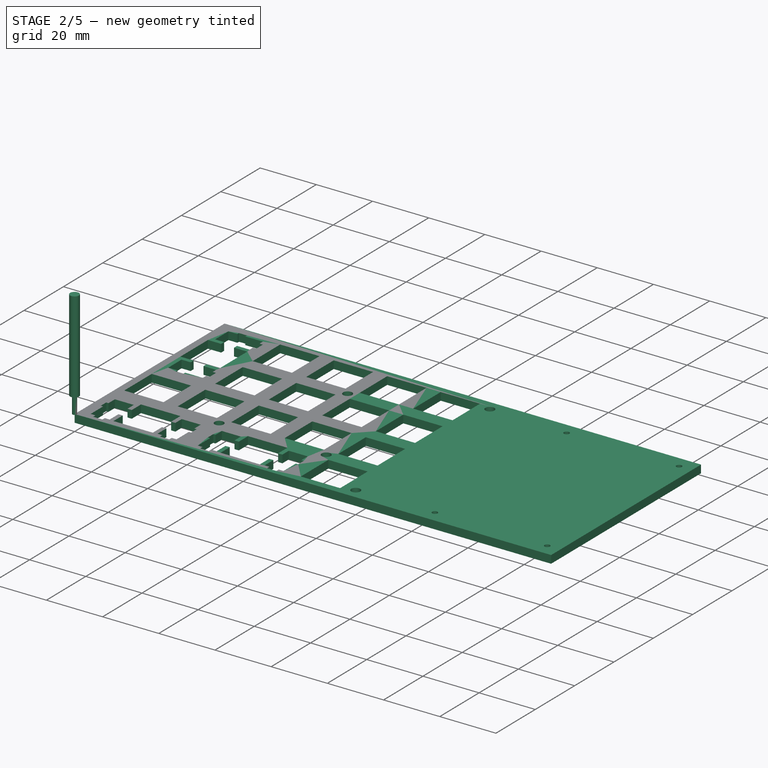
[diagram: stage 2 of 5 — iso view after this stage's code; geometry added in this stage tinted green]
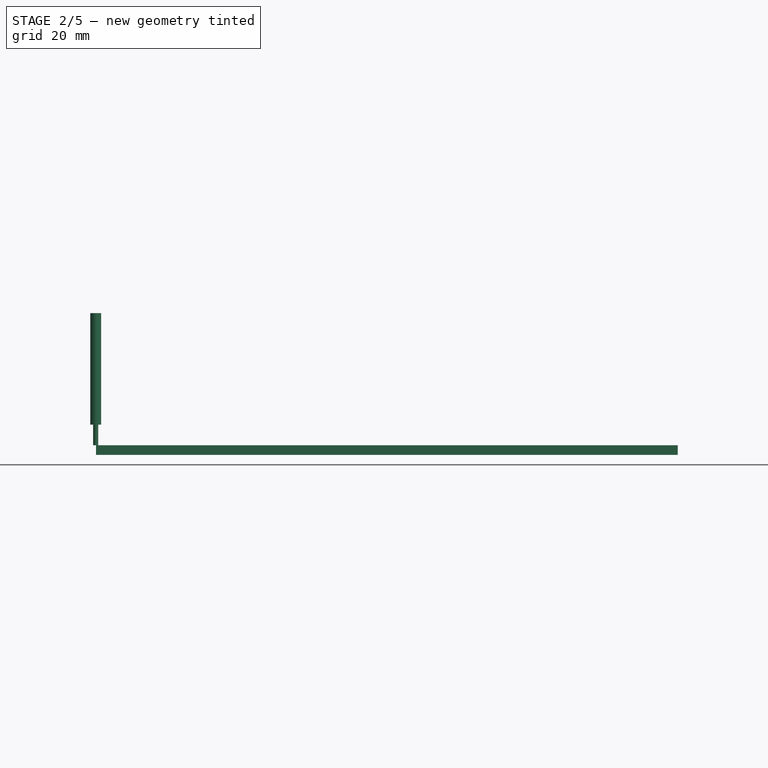
[diagram: stage 2 of 5 — front view after this stage's code; geometry added in this stage tinted green]
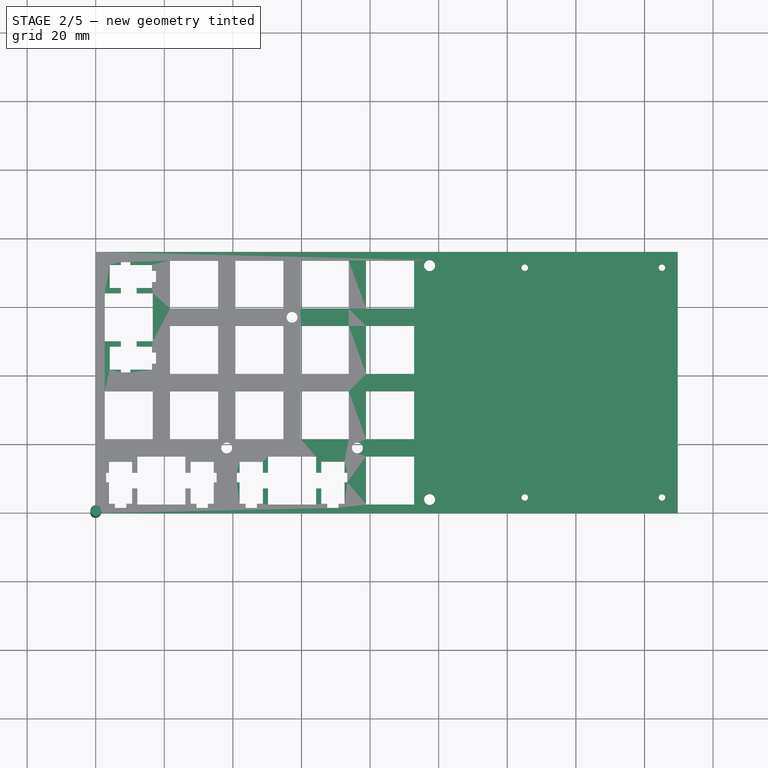
[diagram: stage 2 of 5 — top view after this stage's code; geometry added in this stage tinted green]
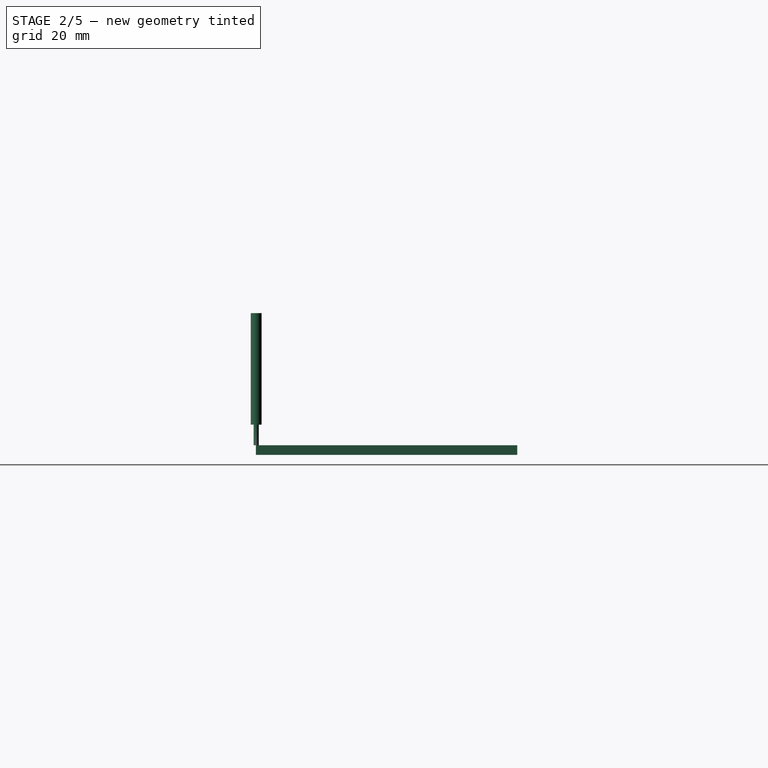
[diagram: stage 2 of 5 — right view after this stage's code; geometry added in this stage tinted green]
FEATURE [Path::FeaturePython] Job  label="Job002"  # Path/CAM operation (typed FeaturePython)
  CycleTime = 00:07:13
  Fixtures = G54
  GeometryTolerance = 0.01
  JobType = 0
  Model = -> Model
  Operations = -> Operations
  OrderOutputBy = 0
  PostProcessor = 12
  SetupSheet = -> SetupSheet
  SplitOutput = false
  Stock = -> Stock
  Tools = -> Tools
FEATURE [App::FeaturePython] SetupSheet001  label="SetupSheet"  # Path/CAM operation (typed FeaturePython)
  ClearanceHeightExpression = OpStockZMax+SetupSheet001.ClearanceHeightOffset
  ClearanceHeightOffset = 5
  CoolantMode = 0
  CoolantModes = None | Flood | Mist
  FinalDepthExpression = OpFinalDepth
  HorizRapid = 0
  SafeHeightExpression = OpStockZMax+SetupSheet001.SafeHeightOffset
  SafeHeightOffset = 3
  StartDepthExpression = OpStartDepth
  StepDownExpression = OpToolDiameter
  VertRapid = 0
FEATURE [App::FeaturePython] PropertyBag001  label="Attributes012"  # WARN: FeaturePython — macro-defined, semantics opaque (R4)
  CustomPropertyGroups = 0
  CuttingEdgeHeight = 6
  Diameter = 1.5
  Flutes = 1
  Length = 38.5
  ShankDiameter = 3.175
FEATURE [Sketcher::SketchObject] Sketch010
  ArcFitTolerance = 0
  AttachmentSupport = -> [XZ_Plane008]
  ExternalTypes = [0]
  FullyConstrained = true
  MakeInternals = false
  MapMode = 5
  Placement = pos=(0,0,0) rot=(1,0,0;1.5708rad)
  _ExternalGeoVersion = 0
  expr: Constraints[10] = <<Attributes012>>.Length
  expr: Constraints[16] = <<Attributes012>>.ShankDiameter
  expr: Constraints[18] = <<Attributes012>>.CuttingEdgeHeight
  expr: Constraints[9] = <<Attributes012>>.Diameter
  sketch-geometry (8):
    g0: LineSegment StartX=0 StartY=38.5 StartZ=0 EndX=0 EndY=0 EndZ=0
    g1: LineSegment StartX=0 StartY=0 StartZ=0 EndX=0.75 EndY=0 EndZ=0
    g2: LineSegment StartX=0.75 StartY=0 StartZ=0 EndX=0.75 EndY=6 EndZ=0
    g3: LineSegment StartX=1.5875 StartY=38.5 StartZ=0 EndX=0 EndY=38.5 EndZ=0
    g4: LineSegment [constr] StartX=0.75 StartY=0 StartZ=0 EndX=-0.75 EndY=0 EndZ=0
    g5: LineSegment StartX=1.5875 StartY=5.99 StartZ=0 EndX=0.75 EndY=6 EndZ=0
    g6: LineSegment StartX=1.5875 StartY=38.5 StartZ=0 EndX=1.5875 EndY=5.99 EndZ=0
    g7: LineSegment [constr] StartX=-1.5875 StartY=38.5 StartZ=0 EndX=1.5875 EndY=38.5 EndZ=0
  constraints (21):
    c: Vertical(g0)
    c: Coincident(g0,g1)
    c: Horizontal(g1)
    c: Coincident(g1,g2)
    c: Vertical(g2)
    c: Horizontal(g3)
    c: Coincident(g0,g3)
    c: Coincident(g4,g1)
    c: Symmetric(g1,g4,g0)
    c: DistanceX(g4,g4) = 1.5
    c: DistanceY(g2,g3) = 38.5
    c: Coincident(g2,g5)
    c: Vertical(g6)
    c: Coincident(g3,g6)
    c: Symmetric(g7,g7,g0)
    c: Coincident(g7,g3)
    c: DistanceX(g7,g7) = 3.175
    c: Coincident(g5,g6)
    c: DistanceY(g2) = 6
    c: Coincident(g0,g-1)
    c: DistanceY(g5,g2) = 0.01
FEATURE [PartDesign::Revolution] Revolution001
  AllowMultiFace = false
  Angle = 360
  Angle2 = 60
  Axis = (0,2e-16,1)
  Base = (0,0,0)
  FuseOrder = 1
  Placement = pos=(0,0,0) rot=(1,0,0;1.5708rad)
  Profile = -> Sketch010
  ReferenceAxis = -> Sketch010 [V_Axis]
  Reversed = true
  Suppressed = false
  Type = 0
FEATURE [App::Point] Origin016
  Role = Origin
FEATURE [PartDesign::Body] Body008  label="Endmill005"
  AllowCompound = false
  Group = -> [Sketch010,Revolution001,PropertyBag001]
  Origin = -> Origin017
  Tip = -> Revolution001
FEATURE [Part::FeaturePython] Endmill001  label="Endmill004"  # WARN: FeaturePython — macro-defined, semantics opaque (R4)
  BitBody = -> Body008
  Chipload = 0
  CuttingEdgeHeight = 6
  Diameter = 1.5
  Flutes = 1
  Length = 38.5
  Material = 1
  ShankDiameter = 3.175
  ShapeID = endmill
  ShapeType = 6
  SpindleDirection = 0
  ToolBitID = 342078eb-42a3-447a-8186-4a9b62d4d20b
FEATURE [PartDesign::Body] Body001  label="TopPlate"
  AllowCompound = false
  Group = -> [Sketch,Pad,Sketch001,Pocket,Sketch002,Pocket001,Sketch011,Pocket002]
  Origin = -> Origin001
  Tip = -> Pocket002
FEATURE [Part::FeaturePython] Clone001  label="Model-TopPlate"  # Draft clone (typed FeaturePython)
  AttacherType = Attacher::AttachEngine3D
  ForceCompound = false
  Fuse = false
  Objects = -> [Body001]
  PathResource = Model
  Placement = pos=(0.1,76.1,-2.8) rot=(0,0,-1;1.5708rad)
  Scale = (1,1,1)
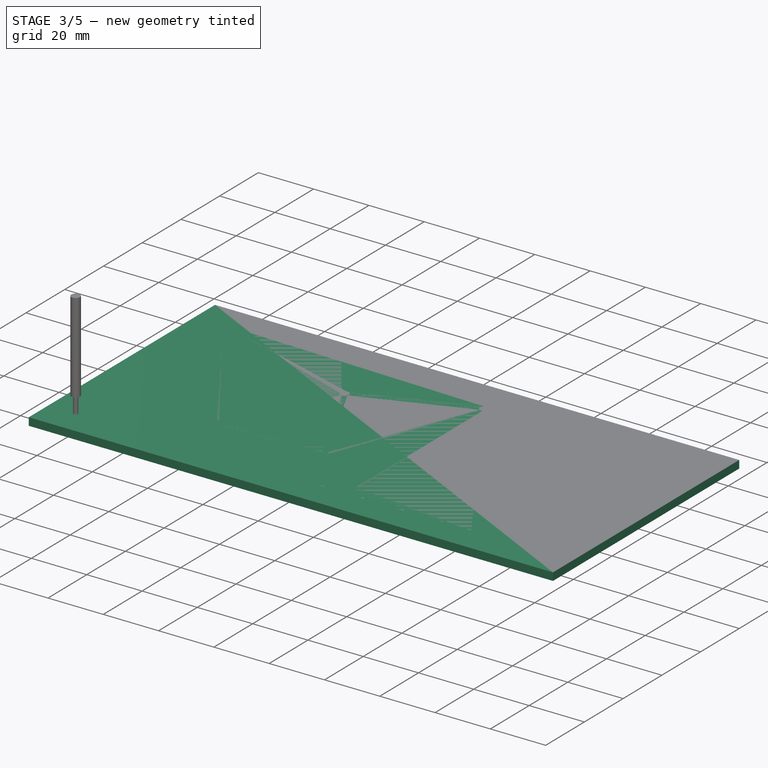
[diagram: stage 3 of 5 — iso view after this stage's code; geometry added in this stage tinted green]
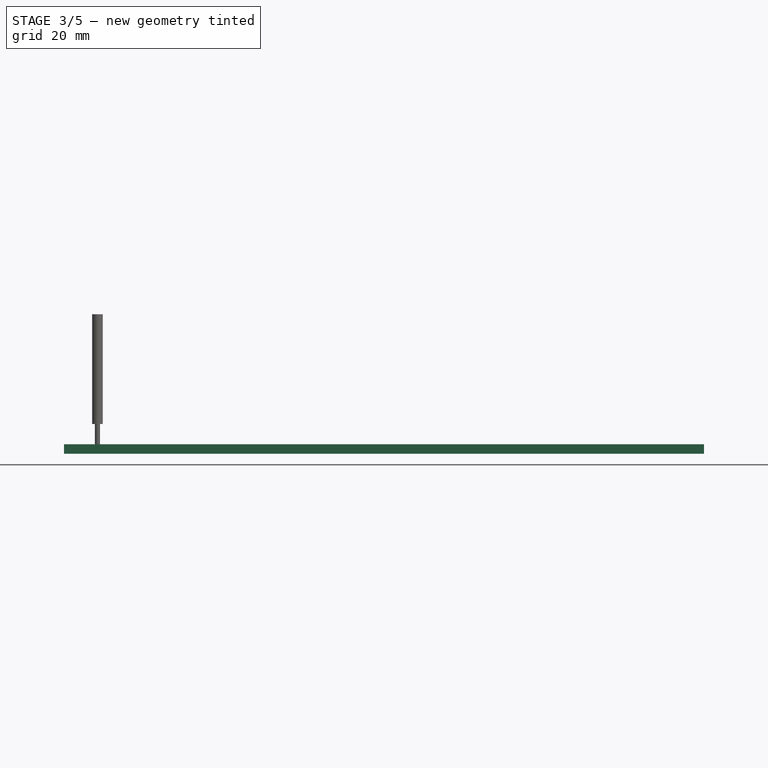
[diagram: stage 3 of 5 — front view after this stage's code; geometry added in this stage tinted green]
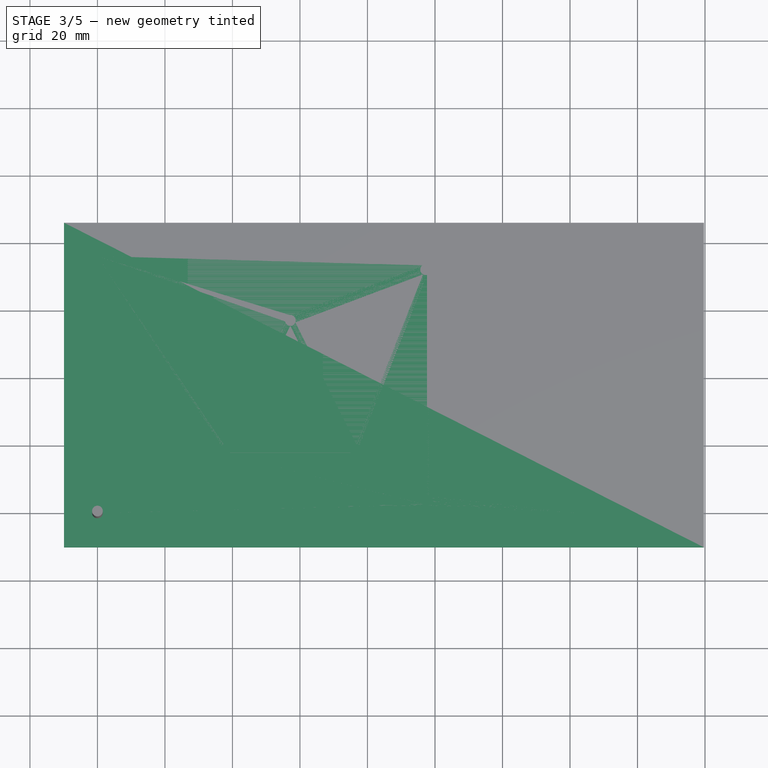
[diagram: stage 3 of 5 — top view after this stage's code; geometry added in this stage tinted green]
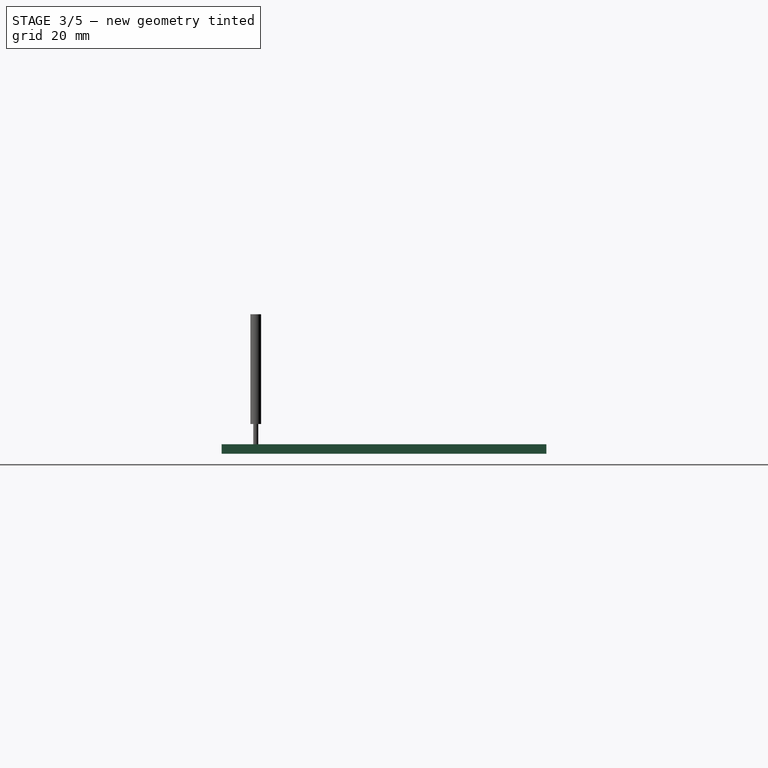
[diagram: stage 3 of 5 — right view after this stage's code; geometry added in this stage tinted green]
FEATURE [PartDesign::SubShapeBinder] Binder
  BindCopyOnChange = 0
  BindMode = 0
  ClaimChildren = false
  Context = -> Body [Binder.]
  Fuse = false
  MakeFace = true
  OffsetFill = false
  OffsetIntersection = false
  OffsetJoinType = 0
  OffsetOpenResult = false
  PartialLoad = false
  Refine = true
  Relative = true
  Support = -> [Body001]
  _Version = 2
FEATURE [Sketcher::SketchObject] Sketch003
  ArcFitTolerance = 1e-06
  AttachmentSupport = -> [Binder]
  ExternalGeometry = -> [Binder]
  ExternalTypes = [0]
  FullyConstrained = true
  MakeInternals = false
  MapMode = 5
  Placement = pos=(0,0,0) rot=(1,0,0;3.14159rad)
  _ExternalGeoVersion = 0
  expr: Constraints[18] = <<Dimensions>>.StandoffSize
  sketch-geometry (9):
    g0: LineSegment [constr] StartX=4 StartY=-97.25 StartZ=0 EndX=72.2 EndY=-97.25 EndZ=0
    g1: LineSegment StartX=69.95 StartY=-97.25 StartZ=0 EndX=71.075 EndY=-99.1986 EndZ=0
    g2: LineSegment StartX=71.075 StartY=-99.1986 StartZ=0 EndX=73.325 EndY=-99.1986 EndZ=0
    g3: LineSegment StartX=73.325 StartY=-99.1986 StartZ=0 EndX=74.45 EndY=-97.25 EndZ=0
    g4: LineSegment StartX=74.45 StartY=-97.25 StartZ=0 EndX=73.325 EndY=-95.3014 EndZ=0
    g5: LineSegment StartX=73.325 StartY=-95.3014 StartZ=0 EndX=71.075 EndY=-95.3014 EndZ=0
    g6: LineSegment StartX=71.075 StartY=-95.3014 StartZ=0 EndX=69.95 EndY=-97.25 EndZ=0
    g7: Circle [constr] CenterX=72.2 CenterY=-97.25 CenterZ=0 NormalX=0 NormalY=0 NormalZ=1 AngleXU=0 Radius=2.25
    g8: Circle CenterX=72.2 CenterY=-97.25 CenterZ=0 NormalX=0 NormalY=0 NormalZ=1 AngleXU=0 Radius=1.6
  constraints (20):
    c: Coincident(g0,g-3)
    c: Coincident(g1,g2)
    c: Coincident(g2,g3)
    c: Coincident(g3,g4)
    c: Coincident(g4,g5)
    c: Coincident(g5,g6)
    c: Coincident(g6,g1)
    c: Equal(g1, g2-g6) x5
    c: PointOnObject(g1,g7)
    c: PointOnObject(g2,g7)
    c: PointOnObject(g3,g7)
    c: PointOnObject(g4,g7)
    c: PointOnObject(g5,g7)
    c: PointOnObject(g6,g7)
    c: Radius(g7) = 2.25
    c: Coincident(g7,g0)
    c: PointOnObject(g6,g0)
    c: Coincident(g0,g-4)
    c: Coincident(g8,g0)
    c: Equal(g8,g-3)
FEATURE [PartDesign::Pad] Pad001
  Direction = (0,0,-1)
  Length = 5
  Length2 = 10
  Profile = -> Sketch003
  ReferenceAxis = -> Sketch003 [N_Axis]
  Refine = true
  SideType = 0
  Suppressed = false
  Type = 0
  Type2 = 0
  expr: Length = <<Dimensions>>.StandoffHeight
FEATURE [PartDesign::Body] Body005  label="PlateStandoff5"
  AllowCompound = false
  Group = -> [Binder004,Sketch007,Pad005]
  Origin = -> Origin005
  Tip = -> Pad005
FEATURE [PartDesign::SubShapeBinder] Binder005
  BindCopyOnChange = 0
  BindMode = 0
  ClaimChildren = false
  Context = -> Body006 [Binder005.]
  Fuse = false
  MakeFace = true
  OffsetFill = false
  OffsetIntersection = false
  OffsetJoinType = 0
  OffsetOpenResult = false
  PartialLoad = false
  Refine = true
  Relative = true
  Support = -> [Body001]
  _Version = 2
FEATURE [PartDesign::SubShapeBinder] Binder006
  BindCopyOnChange = 0
  BindMode = 0
  ClaimChildren = false
  Context = -> Body006 [Binder006.]
  Fuse = false
  MakeFace = true
  OffsetFill = false
  OffsetIntersection = false
  OffsetJoinType = 0
  OffsetOpenResult = false
  PartialLoad = false
  Refine = true
  Relative = true
  Support = -> [Body]
  _Version = 2
FEATURE [Sketcher::SketchObject] Sketch008
  ArcFitTolerance = 1e-06
  AttachmentSupport = -> [Binder006]
  ExternalGeometry = -> [Binder005]
  ExternalTypes = [0]
  FullyConstrained = true
  MakeInternals = false
  MapMode = 5
  Placement = pos=(0,0,-5) rot=(1,0,0;3.14159rad)
  _ExternalGeoVersion = 0
  expr: Constraints[19] = <<Dimensions>>.PlateWidth
  expr: Constraints[20] = <<Dimensions>>.BottomPlateLength
  sketch-geometry (9):
    g0: Circle CenterX=57.1493 CenterY=-38.1007 CenterZ=0 NormalX=0 NormalY=0 NormalZ=1 AngleXU=0 Radius=1.6
    g1: Circle CenterX=19.0494 CenterY=-57.1508 CenterZ=0 NormalX=0 NormalY=0 NormalZ=1 AngleXU=0 Radius=1.6
    g2: Circle CenterX=57.1493 CenterY=-76.2008 CenterZ=0 NormalX=0 NormalY=0 NormalZ=1 AngleXU=0 Radius=1.6
    g3: Circle CenterX=4 CenterY=-97.25 CenterZ=0 NormalX=0 NormalY=0 NormalZ=1 AngleXU=0 Radius=1.6
    g4: Circle CenterX=72.2 CenterY=-97.25 CenterZ=0 NormalX=0 NormalY=0 NormalZ=1 AngleXU=0 Radius=1.6
    g5: LineSegment StartX=0 StartY=0 StartZ=0 EndX=0 EndY=-143 EndZ=0
    g6: LineSegment StartX=0 StartY=-143 StartZ=0 EndX=76.2 EndY=-143 EndZ=0
    g7: LineSegment StartX=76.2 StartY=-143 StartZ=0 EndX=76.2 EndY=0 EndZ=0
    g8: LineSegment StartX=76.2 StartY=0 StartZ=0 EndX=0 EndY=0 EndZ=0
  constraints (21):
    c: Coincident(g0,g-9)
    c: Coincident(g1,g-8)
    c: Coincident(g2,g-7)
    c: Coincident(g3,g-6)
    c: Coincident(g4,g-5)
    c: Equal(g-9,g0)
    c: Equal(g-8,g1)
    c: Equal(g2,g-7)
    c: Equal(g4,g-5)
    c: Equal(g-6,g3)
    c: Coincident(g5,g6)
    c: Coincident(g6,g7)
    c: Coincident(g7,g8)
    c: Coincident(g8,g5)
    c: Vertical(g5)
    c: Vertical(g7)
    c: Horizontal(g6)
    c: Horizontal(g8)
    c: Coincident(g5,g-1)
    c: DistanceX(g6,g6) = 76.2
    c: DistanceY(g7,g7) = 143
FEATURE [PartDesign::Pad] Pad006
  Direction = (0,0,-1)
  Length = 2.8
  Length2 = 10
  Profile = -> Sketch008
  ReferenceAxis = -> Sketch008 [N_Axis]
  Refine = true
  SideType = 0
  Suppressed = false
  Type = 0
  Type2 = 0
  expr: Length = <<Dimensions>>.AcrylicThickness
FEATURE [PartDesign::Body] Body006  label="BottomPlate"
  AllowCompound = false
  Group = -> [Binder005,Binder006,Sketch008,Pad006]
  Origin = -> Origin006
  Tip = -> Pad006
FEATURE [App::Point] Origin007  label="Origin"
  Role = Origin
FEATURE [App::Point] Origin008  label="Origin"
  Role = Origin
FEATURE [App::Point] Origin009  label="Origin"
  Role = Origin
FEATURE [App::Point] Origin010  label="Origin"
  Role = Origin
FEATURE [App::Point] Origin011  label="Origin"
  Role = Origin
FEATURE [App::Point] Origin012  label="Origin"
  Role = Origin
FEATURE [App::Point] Origin013  label="Origin"
  Role = Origin
FEATURE [App::FeaturePython] SetupSheet  label="SetupSheet003"  # Path/CAM operation (typed FeaturePython)
  ClearanceHeightExpression = OpStockZMax+SetupSheet.ClearanceHeightOffset
  ClearanceHeightOffset = 5
  CoolantMode = 0
  CoolantModes = None | Flood | Mist
  FinalDepthExpression = OpFinalDepth
  HorizRapid = 0
  SafeHeightExpression = OpStockZMax+SetupSheet.SafeHeightOffset
  SafeHeightOffset = 3
  StartDepthExpression = OpStartDepth
  StepDownExpression = OpToolDiameter
  VertRapid = 0
FEATURE [Part::FeaturePython] Clone  label="Model-BottomPlate"  # Draft clone (typed FeaturePython)
  AttacherType = Attacher::AttachEngine3D
  ForceCompound = false
  Fuse = false
  Objects = -> [Body006]
  PathResource = Model
  Placement = pos=(-1.42e-14,76.2,5) rot=(0,0,-1;1.5708rad)
  Scale = (1,1,1)
FEATURE [App::DocumentObjectGroup] Model001
  Group = -> [Clone001]
FEATURE [Part::FeaturePython] Stock004  # WARN: FeaturePython — macro-defined, semantics opaque (R4)
  Base = -> Model001
  ExtXneg = 10
  ExtXpos = 10
  ExtYneg = 10
  ExtYpos = 10
  ExtZneg = 0
  ExtZpos = 0
  Placement = pos=(0.1,-0.1,-2.8) rot=(0,0,1;0rad)
  StockType = FromBase
FEATURE [Path::FeaturePython] Drilling001  label="Drilling005"  # Path/CAM operation (typed FeaturePython)
  Active = true
  AddTipLength = false
  Base = -> [Clone001]
  ClearanceHeight = 5
  CoolantMode = 0
  CycleTime = 00:01:18
  Disabled = Clone001.Face55 | Clone001.Face112 | Clone001.Face157 | Clone001.Face162 | Clone001.Face177
  DwellEnabled = false
  DwellTime = 1
  ExtraOffset = 0
  FinalDepth = -1.35
  KeepToolDown = false
  OpFinalDepth = -2.8
  OpStartDepth = 1.47e-14
  OpStockZMax = 1.47e-14
  OpStockZMin = -2.8
  OpToolDiameter = 1.5
  PeckDepth = 0.5
  PeckEnabled = true
  RetractHeight = 1
  RetractMode = 0
  SafeHeight = 3
  StartDepth = 1.47e-14
  ToolController = -> TC__5mm_Endmill001
  chipBreakEnabled = false
  feedRetractEnabled = false
  expr: ClearanceHeight = OpStockZMax + SetupSheet001.ClearanceHeightOffset
  expr: SafeHeight = OpStockZMax + SetupSheet001.SafeHeightOffset
  expr: StartDepth = OpStartDepth
FEATURE [Path::FeaturePython] Helix  label="Helix001"  # Path/CAM operation (typed FeaturePython)
  Active = true
  Base = -> [Clone001]
  ClearanceHeight = 5
  CoolantMode = 0
  CutMode = 0
  CycleTime = 00:05:41
  Direction = 1
  Disabled = Clone001.Face163 | Clone001.Face168 | Clone001.Face178 | Clone001.Face179
  FinalDepth = -2.8
  OffsetExtra = 0
  OpFinalDepth = -2.8
  OpStartDepth = 1.47e-14
  OpStockZMax = 1.47e-14
  OpStockZMin = -2.8
  OpToolDiameter = 1.5
  SafeHeight = 3
  StartDepth = 1.47e-14
  StartRadius = 0
  StartSide = 1
  StepDown = 0.2
  StepOver = 50
  ToolController = -> TC__5mm_Endmill001
  expr: ClearanceHeight = OpStockZMax + SetupSheet001.ClearanceHeightOffset
  expr: FinalDepth = OpFinalDepth
  expr: SafeHeight = OpStockZMax + SetupSheet001.SafeHeightOffset
  expr: StartDepth = OpStartDepth
FEATURE [Path::FeaturePython] Profile001  label="Profile003"  # Path/CAM operation (typed FeaturePython)
  Active = true
  AreaParams:
    Tolerance = 1e-07
    FitArcs = True
    Simplify = False
    CleanDistance = 0.0
    Accuracy = 0.01
    Unit = 1.0
    MinArcPoints = 4
    MaxArcPoints = 100
    ClipperScale = 10000000.0
    Fill = 0
    Coplanar = 0
    Reorient = True
    Outline = False
    Explode = False
    OpenMode = 0
    Deflection = 0.01
    SubjectFill = 0
    ClipFill = 0
    Offset = -0.75
    ExtraPass = 0
    Stepover = 0.0
    LastStepover = 0.0
    JoinType = 0
    EndType = 0
    MiterLimit = 2.0
    RoundPrecision = 0.0
    PocketMode = 0
    ToolRadius = 1.0
    PocketExtraOffset = 0.0
    PocketStepover = 0.0
    PocketLastStepover = 0.0
    FromCenter = False
    Angle = 45.0
    AngleShift = 0.0
    Shift = 0.0
    Thicken = False
    SectionCount = -1
    Stepdown = 1.0
    SectionOffset = 0.0
    SectionTolerance = 1e-06
    SectionMode = 2
    Project = False
  Base = -> [Clone001]
  ClearanceHeight = 5
  CoolantMode = 0
  CycleTime = 01:07:19
  Direction = 0
  FinalDepth = -2.9
  HandleMultipleFeatures = 0
  JoinType = 0
  MiterLimit = 0.1
  NumPasses = 1
  OffsetExtra = 0
  OpFinalDepth = -3.69e-14
  OpStartDepth = 0.2
  OpStockZMax = 1.47e-14
  OpStockZMin = -2.8
  OpToolDiameter = 1.5
  PathParams = {'orientation': 0, 'feedrate': 4.166666666666667, 'feedrate_v': 1.0, 'verbose': True, 'resume_height': 3.0000000000000147, 'retraction': 5.000000000000014, 'return_end': True, 'preamble': False, 'start': Vector (73.02540699999996, 60.32588499999997, 5.000000000000014)}
  SafeHeight = 3
  Side = 0
  SplitArcs = false
  StartDepth = 0
  StartPoint = (0,0,0)
  StepDown = 0.2
  Stepover = 0
  ToolController = -> TC__5mm_Endmill001
  UseComp = true
  UseStartPoint = false
  processCircles = false
  processHoles = true
  processPerimeter = false
  expr: ClearanceHeight = OpStockZMax + SetupSheet001.ClearanceHeightOffset
  expr: SafeHeight = OpStockZMax + SetupSheet001.SafeHeightOffset
FEATURE [Path::FeaturePython] Profile002  label="Profile005"  # Path/CAM operation (typed FeaturePython)
  Active = true
  AreaParams:
    Tolerance = 1e-07
    FitArcs = True
    Simplify = False
    CleanDistance = 0.0
    Accuracy = 0.01
    Unit = 1.0
    MinArcPoints = 4
    MaxArcPoints = 100
    ClipperScale = 10000000.0
    Fill = 0
    Coplanar = 0
    Reorient = True
    Outline = False
    Explode = False
    OpenMode = 0
    Deflection = 0.01
    SubjectFill = 0
    ClipFill = 0
    Offset = 0.75
    ExtraPass = 0
    Stepover = -0.0
    LastStepover = 0.0
    JoinType = 0
    EndType = 0
    MiterLimit = 2.0
    RoundPrecision = 0.0
    PocketMode = 0
    ToolRadius = 1.0
    PocketExtraOffset = 0.0
    PocketStepover = 0.0
    PocketLastStepover = 0.0
    FromCenter = False
    Angle = 45.0
    AngleShift = 0.0
    Shift = 0.0
    Thicken = False
    SectionCount = -1
    Stepdown = 1.0
    SectionOffset = 0.0
    SectionTolerance = 1e-06
    SectionMode = 2
    Project = False
  Base = -> [Clone001]
  ClearanceHeight = 5
  CoolantMode = 0
  CycleTime = 00:30:48
  Direction = 0
  FinalDepth = -2.9
  HandleMultipleFeatures = 0
  JoinType = 0
  MiterLimit = 0.1
  NumPasses = 1
  OffsetExtra = 0
  OpFinalDepth = -3.69e-14
  OpStartDepth = 0.2
  OpStockZMax = 1.47e-14
  OpStockZMin = -2.8
  OpToolDiameter = 1.5
  PathParams:
    orientation = 1
    feedrate = 4.166666666666667
    feedrate_v = 1.0
    verbose = True
    resume_height = 3.0000000000000147
    retraction = 5.000000000000014
    return_end = True
    preamble = False
  SafeHeight = 3
  Side = 0
  SplitArcs = false
  StartDepth = 0
  StartPoint = (0,0,0)
  StepDown = 0.2
  Stepover = 0
  ToolController = -> TC__5mm_Endmill001
  UseComp = true
  UseStartPoint = false
  processCircles = false
  processHoles = false
  processPerimeter = true
  expr: ClearanceHeight = OpStockZMax + SetupSheet001.ClearanceHeightOffset
  expr: SafeHeight = OpStockZMax + SetupSheet001.SafeHeightOffset
FEATURE [App::DocumentObjectGroup] Operations001
  Group = -> [Drilling001,Helix,Profile001,Profile002]
FEATURE [Path::FeaturePython] Job001  # Path/CAM operation (typed FeaturePython)
  CycleTime = 01:45:06
  Fixtures = G54
  GeometryTolerance = 0.01
  JobType = 0
  Model = -> Model001
  Operations = -> Operations001
  OrderOutputBy = 0
  PostProcessor = 12
  PostProcessorOutputFile = <userpath>/tactical-tenkey/case/top-plate.nc
  SetupSheet = -> SetupSheet001
  SplitOutput = false
  Stock = -> Stock004
  Tools = -> Tools001
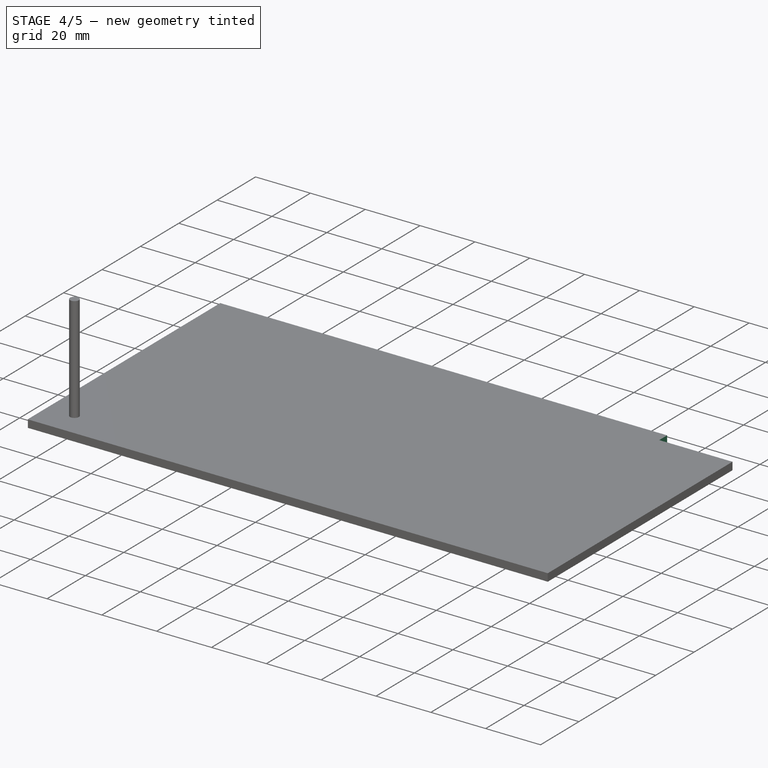
[diagram: stage 4 of 5 — iso view after this stage's code; geometry added in this stage tinted green]
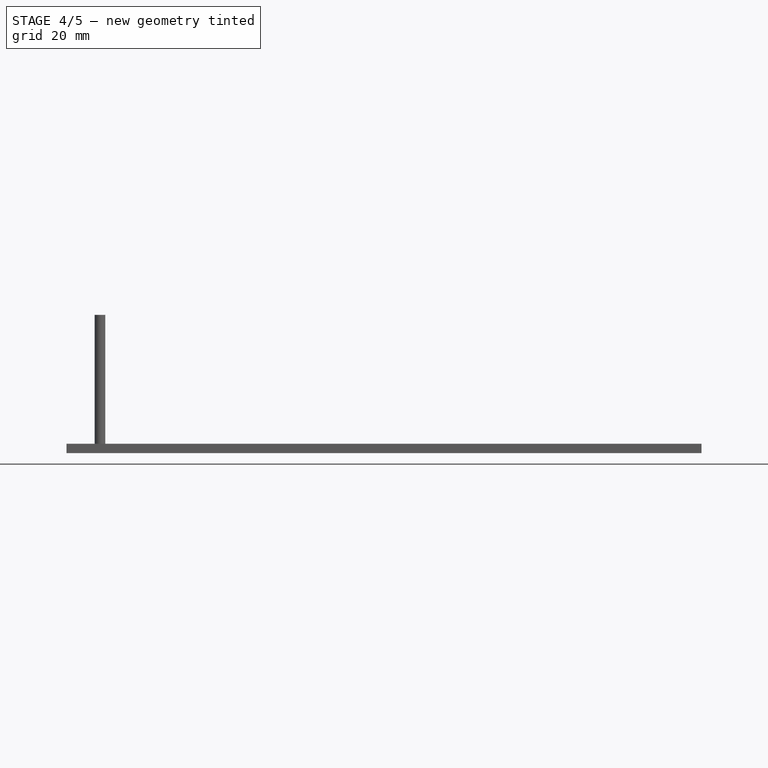
[diagram: stage 4 of 5 — front view after this stage's code; geometry added in this stage tinted green]
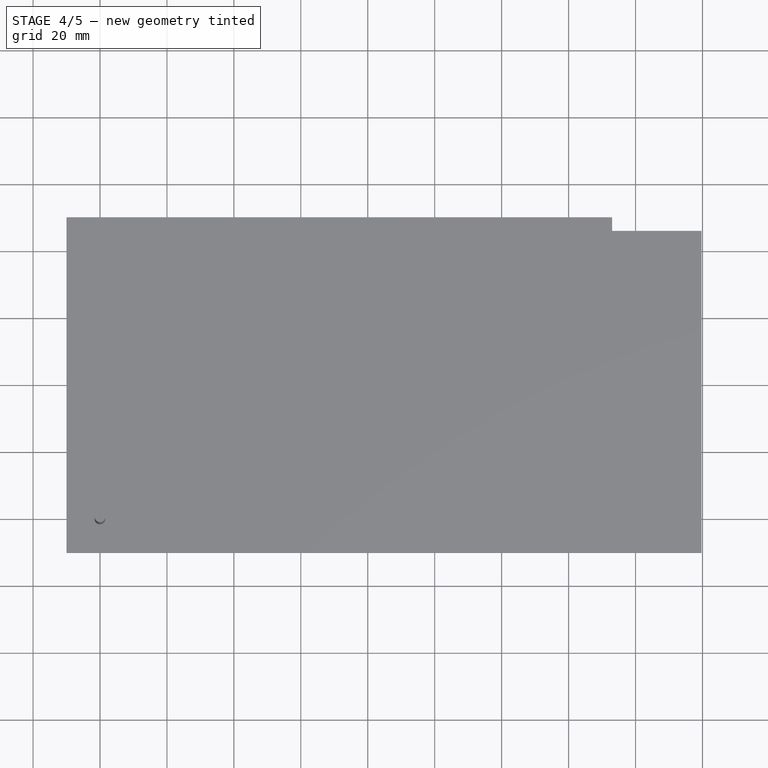
[diagram: stage 4 of 5 — top view after this stage's code; geometry added in this stage tinted green]
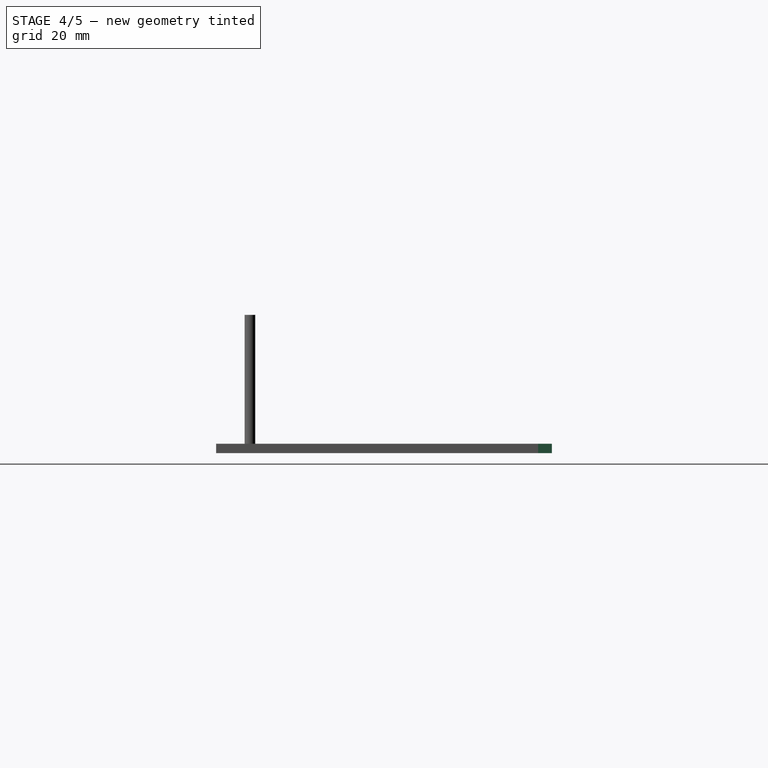
[diagram: stage 4 of 5 — right view after this stage's code; geometry added in this stage tinted green]
FEATURE [App::DocumentObjectGroup] Model
  Group = -> [Clone]
FEATURE [App::FeaturePython] PropertyBag  label="Attributes011"  # WARN: FeaturePython — macro-defined, semantics opaque (R4)
  CustomPropertyGroups = 0
  CuttingEdgeHeight = 17
  Diameter = 3.175
  Flutes = 1
  Length = 38.5
  ShankDiameter = 3.175
FEATURE [Sketcher::SketchObject] Sketch009
  ArcFitTolerance = 0
  AttachmentSupport = -> [XZ_Plane007]
  ExternalTypes = [0]
  FullyConstrained = true
  MakeInternals = false
  MapMode = 5
  Placement = pos=(0,0,0) rot=(1,0,0;1.5708rad)
  _ExternalGeoVersion = 0
  expr: Constraints[10] = <<Attributes011>>.Length
  expr: Constraints[16] = <<Attributes011>>.ShankDiameter
  expr: Constraints[18] = <<Attributes011>>.CuttingEdgeHeight
  expr: Constraints[9] = <<Attributes011>>.Diameter
  sketch-geometry (8):
    g0: LineSegment StartX=0 StartY=38.5 StartZ=0 EndX=0 EndY=0 EndZ=0
    g1: LineSegment StartX=0 StartY=0 StartZ=0 EndX=1.5875 EndY=0 EndZ=0
    g2: LineSegment StartX=1.5875 StartY=0 StartZ=0 EndX=1.5875 EndY=17 EndZ=0
    g3: LineSegment StartX=1.5875 StartY=38.5 StartZ=0 EndX=0 EndY=38.5 EndZ=0
    g4: LineSegment [constr] StartX=1.5875 StartY=0 StartZ=0 EndX=-1.5875 EndY=0 EndZ=0
    g5: LineSegment StartX=1.5875 StartY=16.99 StartZ=0 EndX=1.5875 EndY=17 EndZ=0
    g6: LineSegment StartX=1.5875 StartY=38.5 StartZ=0 EndX=1.5875 EndY=16.99 EndZ=0
    g7: LineSegment [constr] StartX=-1.5875 StartY=38.5 StartZ=0 EndX=1.5875 EndY=38.5 EndZ=0
  constraints (21):
    c: Vertical(g0)
    c: Coincident(g0,g1)
    c: Horizontal(g1)
    c: Coincident(g1,g2)
    c: Vertical(g2)
    c: Horizontal(g3)
    c: Coincident(g0,g3)
    c: Coincident(g4,g1)
    c: Symmetric(g1,g4,g0)
    c: DistanceX(g4,g4) = 3.175
    c: DistanceY(g2,g3) = 38.5
    c: Coincident(g2,g5)
    c: Vertical(g6)
    c: Coincident(g3,g6)
    c: Symmetric(g7,g7,g0)
    c: Coincident(g7,g3)
    c: DistanceX(g7,g7) = 3.175
    c: Coincident(g5,g6)
    c: DistanceY(g2) = 17
    c: Coincident(g0,g-1)
    c: DistanceY(g5,g2) = 0.01
FEATURE [PartDesign::Revolution] Revolution
  AllowMultiFace = false
  Angle = 360
  Angle2 = 60
  Axis = (0,2e-16,1)
  Base = (0,0,0)
  FuseOrder = 1
  Placement = pos=(0,0,0) rot=(1,0,0;1.5708rad)
  Profile = -> Sketch009
  ReferenceAxis = -> Sketch009 [V_Axis]
  Reversed = true
  Suppressed = false
  Type = 0
FEATURE [App::Point] Origin014
  Role = Origin
FEATURE [PartDesign::Body] Body007  label="Endmill"
  AllowCompound = false
  Group = -> [Sketch009,Revolution,PropertyBag]
  Origin = -> Origin015
  Tip = -> Revolution
FEATURE [Part::FeaturePython] Endmill  label="Endmill003"  # WARN: FeaturePython — macro-defined, semantics opaque (R4)
  BitBody = -> Body007
  Chipload = 0
  CuttingEdgeHeight = 17
  Diameter = 3.175
  Flutes = 1
  Length = 38.5
  Material = 0
  ShankDiameter = 3.175
  ShapeID = endmill
  ShapeType = 6
  SpindleDirection = 0
  ToolBitID = e6c88092-cdfe-41de-8768-1de305f7fca4
FEATURE [Path::FeaturePython] TC__5mm_Endmill  label="TC: 3.175 1-Flute"  # Path/CAM operation (typed FeaturePython)
  HorizFeed = 8.33333
  HorizRapid = 0
  SpindleDir = 0
  SpindleSpeed = 12000
  Tool = -> Endmill
  ToolNumber = 1
  VertFeed = 2.5
  VertRapid = 0
  expr: HorizRapid = SetupSheet.HorizRapid
  expr: VertRapid = SetupSheet.VertRapid
FEATURE [App::DocumentObjectGroup] Tools
  Group = -> [TC__5mm_Endmill]
FEATURE [Path::FeaturePython] Profile  label="Profile001"  # Path/CAM operation (typed FeaturePython)
  Active = true
  AreaParams:
    Tolerance = 1e-07
    FitArcs = True
    Simplify = False
    CleanDistance = 0.0
    Accuracy = 0.01
    Unit = 1.0
    MinArcPoints = 4
    MaxArcPoints = 100
    ClipperScale = 10000000.0
    Fill = 0
    Coplanar = 0
    Reorient = True
    Outline = False
    Explode = False
    OpenMode = 0
    Deflection = 0.01
    SubjectFill = 0
    ClipFill = 0
    Offset = 1.5875
    ExtraPass = 0
    Stepover = -0.0
    LastStepover = 0.0
    JoinType = 0
    EndType = 0
    MiterLimit = 2.0
    RoundPrecision = 0.0
    PocketMode = 0
    ToolRadius = 1.0
    PocketExtraOffset = 0.0
    PocketStepover = 0.0
    PocketLastStepover = 0.0
    FromCenter = False
    Angle = 45.0
    AngleShift = 0.0
    Shift = 0.0
    Thicken = False
    SectionCount = -1
    Stepdown = 1.0
    SectionOffset = 0.0
    SectionTolerance = 1e-06
    SectionMode = 2
    Project = False
  Base = -> [Clone]
  ClearanceHeight = 5
  CoolantMode = 0
  CycleTime = 00:06:42
  Direction = 1
  FinalDepth = -2.8
  HandleMultipleFeatures = 0
  JoinType = 0
  MiterLimit = 0.1
  NumPasses = 1
  OffsetExtra = 0
  OpFinalDepth = 0
  OpStartDepth = 0.4
  OpStockZMax = 0
  OpStockZMin = -2.8
  OpToolDiameter = 3.175
  PathParams = {'orientation': 0, 'feedrate': 8.333333333333334, 'feedrate_v': 2.5, 'verbose': True, 'resume_height': 3.0, 'retraction': 5.0, 'return_end': True, 'preamble': False}
  SafeHeight = 3
  Side = 0
  SplitArcs = false
  StartDepth = 0
  StartPoint = (0,0,0)
  StepDown = 0.4
  Stepover = 0
  ToolController = -> TC__5mm_Endmill
  UseComp = true
  UseStartPoint = false
  processCircles = false
  processHoles = false
  processPerimeter = true
  expr: ClearanceHeight = OpStockZMax + SetupSheet.ClearanceHeightOffset
  expr: SafeHeight = OpStockZMax + SetupSheet.SafeHeightOffset
FEATURE [Path::FeaturePython] DressupTag  # Path/CAM operation (typed FeaturePython)
  Angle = 45
  Base = -> Profile
  Disabled = [0,1,2,3]
  Height = 1
  Positions = (4) [(-39.6875,35.75,-2.8),(-39.6875,-35.75,-2.8),(39.6875,-35.75,-2.8),(39.6875,35.75,-2.8)]
  Radius = 0
  SegmentationFactor = 50
  Width = 3.3
FEATURE [Path::FeaturePython] Drilling  # Path/CAM operation (typed FeaturePython)
  Active = true
  AddTipLength = false
  Base = -> [Clone]
  ClearanceHeight = 5
  CoolantMode = 0
  CycleTime = 00:00:31
  DwellEnabled = false
  DwellTime = 1
  ExtraOffset = 0
  FinalDepth = -2.8
  KeepToolDown = false
  OpFinalDepth = -2.8
  OpStartDepth = 0
  OpStockZMax = 0
  OpStockZMin = -2.8
  OpToolDiameter = 3.175
  PeckDepth = 0.4
  PeckEnabled = true
  RetractHeight = 1
  RetractMode = 0
  SafeHeight = 3
  StartDepth = 0
  ToolController = -> TC__5mm_Endmill
  chipBreakEnabled = false
  feedRetractEnabled = false
  expr: ClearanceHeight = OpStockZMax + SetupSheet.ClearanceHeightOffset
  expr: FinalDepth = OpFinalDepth
  expr: SafeHeight = OpStockZMax + SetupSheet.SafeHeightOffset
  expr: StartDepth = OpStartDepth
FEATURE [App::DocumentObjectGroup] Operations
  Group = -> [Drilling,DressupTag]
FEATURE [Part::FeaturePython] Stock  # WARN: FeaturePython — macro-defined, semantics opaque (R4)
  Base = -> Model
  ExtXneg = 10
  ExtXpos = 10
  ExtYneg = 10
  ExtYpos = 14
  ExtZneg = 0
  ExtZpos = 0
  Placement = pos=(-1.42e-14,-1.42e-14,-2.8) rot=(0,0,1;0rad)
  StockType = FromBase
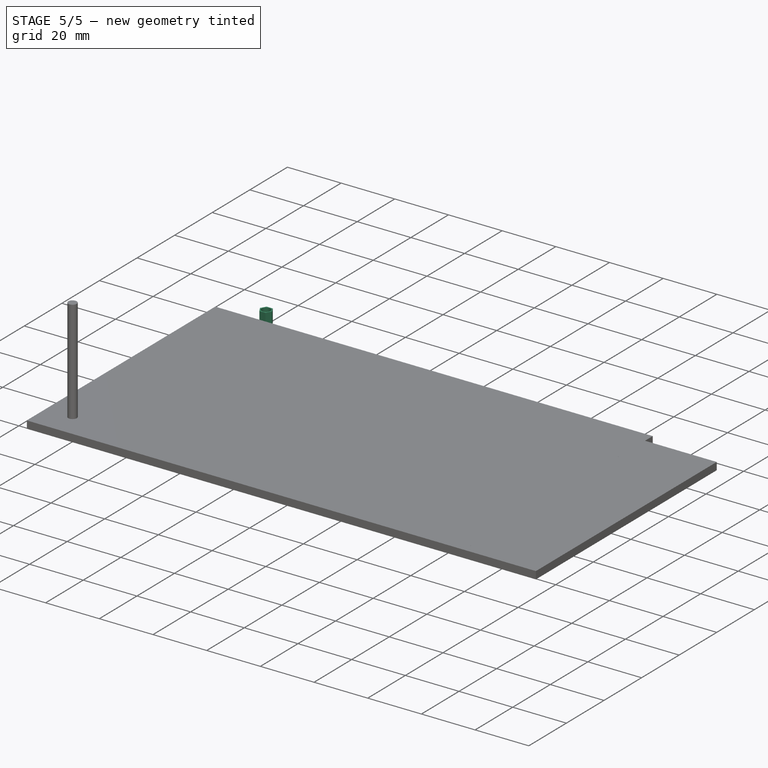
[diagram: stage 5 of 5 — iso view after this stage's code; geometry added in this stage tinted green]
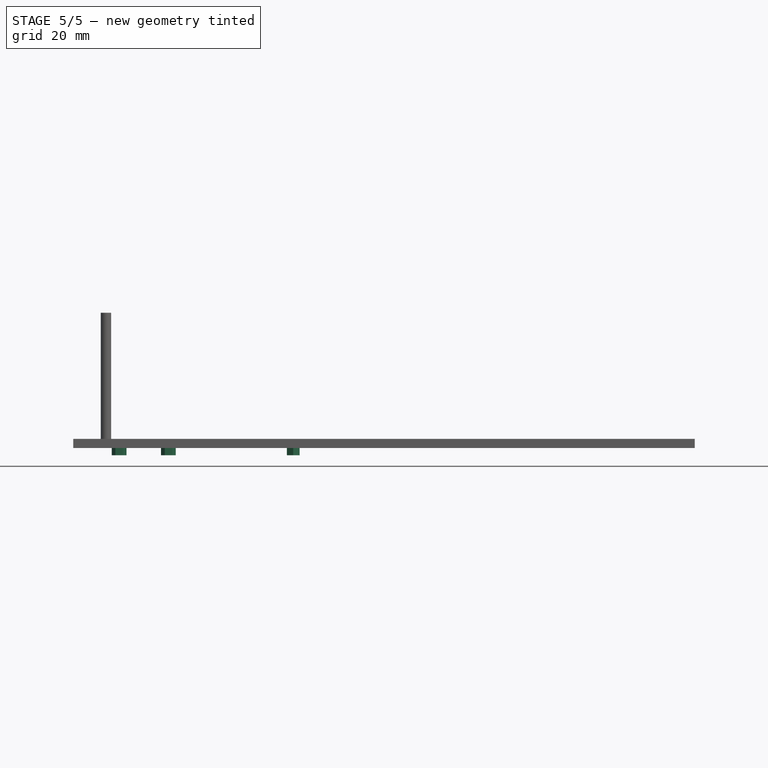
[diagram: stage 5 of 5 — front view after this stage's code; geometry added in this stage tinted green]
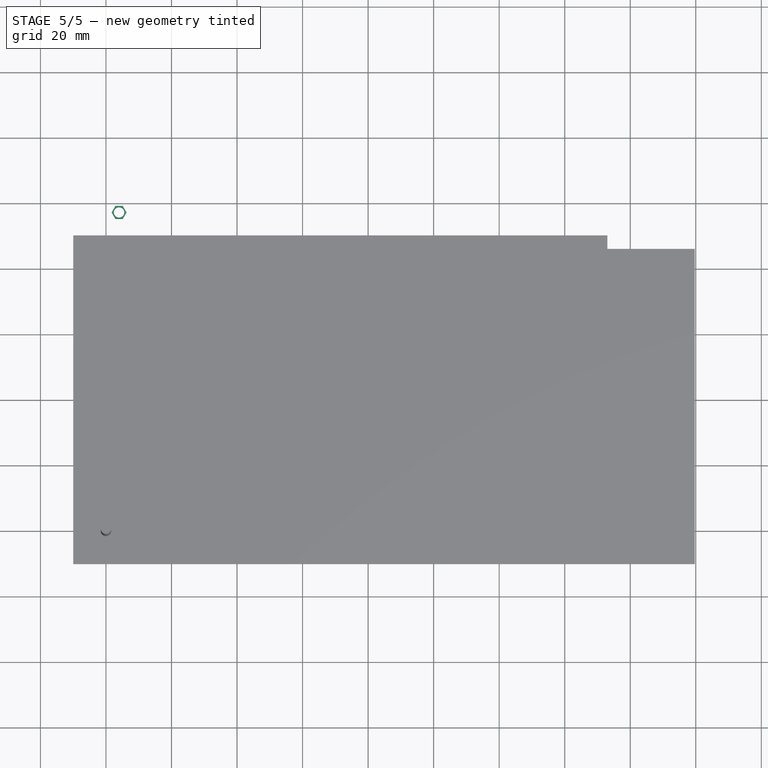
[diagram: stage 5 of 5 — top view after this stage's code; geometry added in this stage tinted green]
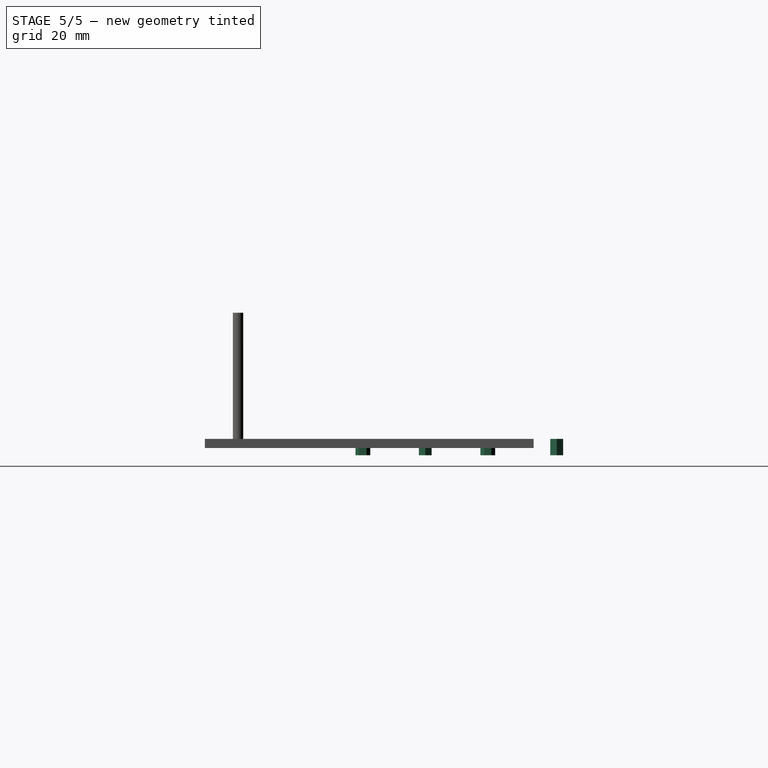
[diagram: stage 5 of 5 — right view after this stage's code; geometry added in this stage tinted green]
FEATURE [PartDesign::Body] Body  label="PlateStandoff1"
  AllowCompound = false
  Group = -> [Binder,Sketch003,Pad001]
  Origin = -> Origin
  Tip = -> Pad001
FEATURE [PartDesign::SubShapeBinder] Binder001
  BindCopyOnChange = 0
  BindMode = 0
  ClaimChildren = false
  Context = -> Body002 [Binder001.]
  Fuse = false
  MakeFace = true
  OffsetFill = false
  OffsetIntersection = false
  OffsetJoinType = 0
  OffsetOpenResult = false
  PartialLoad = false
  Refine = true
  Relative = true
  Support = -> [Body001]
  _Version = 2
FEATURE [Sketcher::SketchObject] Sketch004
  ArcFitTolerance = 1e-06
  AttachmentSupport = -> [Binder001]
  ExternalGeometry = -> [Binder001]
  ExternalTypes = [0]
  FullyConstrained = true
  MakeInternals = false
  MapMode = 5
  Placement = pos=(0,0,0) rot=(1,0,0;3.14159rad)
  _ExternalGeoVersion = 0
  expr: Constraints[23] = <<Dimensions>>.StandoffSize
  sketch-geometry (9):
    g0: Circle CenterX=4 CenterY=-97.25 CenterZ=0 NormalX=0 NormalY=0 NormalZ=1 AngleXU=0 Radius=1.6
    g1: LineSegment [constr] StartX=4 StartY=-97.25 StartZ=0 EndX=72.2 EndY=-97.25 EndZ=0
    g2: LineSegment StartX=6.25 StartY=-97.25 StartZ=0 EndX=5.125 EndY=-95.3014 EndZ=0
    g3: LineSegment StartX=5.125 StartY=-95.3014 StartZ=0 EndX=2.875 EndY=-95.3014 EndZ=0
    g4: LineSegment StartX=2.875 StartY=-95.3014 StartZ=0 EndX=1.75 EndY=-97.25 EndZ=0
    g5: LineSegment StartX=1.75 StartY=-97.25 StartZ=0 EndX=2.875 EndY=-99.1986 EndZ=0
    g6: LineSegment StartX=2.875 StartY=-99.1986 StartZ=0 EndX=5.125 EndY=-99.1986 EndZ=0
    g7: LineSegment StartX=5.125 StartY=-99.1986 StartZ=0 EndX=6.25 EndY=-97.25 EndZ=0
    g8: Circle [constr] CenterX=4 CenterY=-97.25 CenterZ=0 NormalX=0 NormalY=0 NormalZ=1 AngleXU=0 Radius=2.25
  constraints (20):
    c: Coincident(g0,g-4)
    c: Equal(g0,g-4)
    c: Coincident(g1,g0)
    c: Coincident(g1,g-3)
    c: Coincident(g2,g3)
    c: Coincident(g3,g4)
    c: Coincident(g4,g5)
    c: Coincident(g5,g6)
    c: Coincident(g6,g7)
    c: Coincident(g7,g2)
    c: Equal(g2, g3-g7) x5
    c: PointOnObject(g2,g8)
    c: PointOnObject(g3,g8)
    c: PointOnObject(g4,g8)
    c: PointOnObject(g5,g8)
    c: PointOnObject(g6,g8)
    c: PointOnObject(g7,g8)
    c: Coincident(g8,g0)
    c: PointOnObject(g7,g1)
    c: Distance(g0,g2) = 2.25
FEATURE [PartDesign::Pad] Pad002
  Direction = (0,0,-1)
  Length = 5
  Length2 = 10
  Profile = -> Sketch004
  ReferenceAxis = -> Sketch004 [N_Axis]
  Refine = true
  SideType = 0
  Suppressed = false
  Type = 0
  Type2 = 0
  expr: Length = <<Dimensions>>.StandoffHeight
FEATURE [PartDesign::Body] Body002  label="PlateStandoff2"
  AllowCompound = false
  Group = -> [Binder001,Sketch004,Pad002]
  Origin = -> Origin002
  Tip = -> Pad002
FEATURE [PartDesign::SubShapeBinder] Binder002
  BindCopyOnChange = 0
  BindMode = 0
  ClaimChildren = false
  Context = -> Body003 [Binder002.]
  Fuse = false
  MakeFace = true
  OffsetFill = false
  OffsetIntersection = false
  OffsetJoinType = 0
  OffsetOpenResult = false
  PartialLoad = false
  Refine = true
  Relative = true
  Support = -> [Body001]
  _Version = 2
FEATURE [Sketcher::SketchObject] Sketch005
  ArcFitTolerance = 1e-06
  AttachmentSupport = -> [Binder002]
  ExternalGeometry = -> [Binder002]
  ExternalTypes = [0]
  FullyConstrained = true
  MakeInternals = false
  MapMode = 5
  Placement = pos=(0,0,0) rot=(1,0,0;3.14159rad)
  _ExternalGeoVersion = 0
  expr: Constraints[21] = <<Dimensions>>.StandoffSize
  sketch-geometry (9):
    g0: LineSegment [constr] StartX=57.1493 StartY=-38.1007 StartZ=0 EndX=57.1493 EndY=-76.2008 EndZ=0
    g1: Circle CenterX=57.1493 CenterY=-76.2008 CenterZ=0 NormalX=0 NormalY=0 NormalZ=1 AngleXU=0 Radius=1.6
    g2: LineSegment StartX=57.1493 StartY=-73.9508 StartZ=0 EndX=55.2007 EndY=-75.0758 EndZ=0
    g3: LineSegment StartX=55.2007 StartY=-75.0758 StartZ=0 EndX=55.2007 EndY=-77.3258 EndZ=0
    g4: LineSegment StartX=55.2007 StartY=-77.3258 StartZ=0 EndX=57.1493 EndY=-78.4508 EndZ=0
    g5: LineSegment StartX=57.1493 StartY=-78.4508 StartZ=0 EndX=59.0978 EndY=-77.3258 EndZ=0
    g6: LineSegment StartX=59.0978 StartY=-77.3258 StartZ=0 EndX=59.0978 EndY=-75.0758 EndZ=0
    g7: LineSegment StartX=59.0978 StartY=-75.0758 StartZ=0 EndX=57.1493 EndY=-73.9508 EndZ=0
    g8: Circle [constr] CenterX=57.1493 CenterY=-76.2008 CenterZ=0 NormalX=0 NormalY=0 NormalZ=1 AngleXU=0 Radius=2.25
  constraints (20):
    c: Coincident(g0,g-4)
    c: Coincident(g0,g-3)
    c: Coincident(g1,g0)
    c: Equal(g1,g-3)
    c: Coincident(g2,g3)
    c: Coincident(g3,g4)
    c: Coincident(g4,g5)
    c: Coincident(g5,g6)
    c: Coincident(g6,g7)
    c: Coincident(g7,g2)
    c: Equal(g2, g3-g7) x5
    c: PointOnObject(g2,g8)
    c: PointOnObject(g3,g8)
    c: PointOnObject(g4,g8)
    c: PointOnObject(g5,g8)
    c: PointOnObject(g6,g8)
    c: PointOnObject(g7,g8)
    c: Radius(g8) = 2.25
    c: Coincident(g8,g0)
    c: PointOnObject(g7,g0)
FEATURE [PartDesign::Pad] Pad003
  Direction = (0,0,-1)
  Length = 5
  Length2 = 10
  Profile = -> Sketch005
  ReferenceAxis = -> Sketch005 [N_Axis]
  Refine = true
  SideType = 0
  Suppressed = false
  Type = 0
  Type2 = 0
  expr: Length = <<Dimensions>>.StandoffHeight
FEATURE [PartDesign::Body] Body003  label="PlateStandoff3"
  AllowCompound = false
  Group = -> [Binder002,Sketch005,Pad003]
  Origin = -> Origin003
  Tip = -> Pad003
FEATURE [PartDesign::SubShapeBinder] Binder003
  BindCopyOnChange = 0
  BindMode = 0
  ClaimChildren = false
  Context = -> Body004 [Binder003.]
  Fuse = false
  MakeFace = true
  OffsetFill = false
  OffsetIntersection = false
  OffsetJoinType = 0
  OffsetOpenResult = false
  PartialLoad = false
  Refine = true
  Relative = true
  Support = -> [Body001]
  _Version = 2
FEATURE [Sketcher::SketchObject] Sketch006
  ArcFitTolerance = 1e-06
  AttachmentSupport = -> [Binder003]
  ExternalGeometry = -> [Binder003]
  ExternalTypes = [0]
  FullyConstrained = true
  MakeInternals = false
  MapMode = 5
  Placement = pos=(0,0,0) rot=(1,0,0;3.14159rad)
  _ExternalGeoVersion = 0
  expr: Constraints[24] = <<Dimensions>>.StandoffSize
  sketch-geometry (10):
    g0: LineSegment [constr] StartX=57.1493 StartY=-38.1007 StartZ=0 EndX=57.1493 EndY=-76.2008 EndZ=0
    g1: LineSegment [constr] StartX=19.0494 StartY=-57.1508 StartZ=0 EndX=57.1493 EndY=-57.1508 EndZ=0
    g2: Circle CenterX=19.0494 CenterY=-57.1508 CenterZ=0 NormalX=0 NormalY=0 NormalZ=1 AngleXU=0 Radius=1.6
    g3: LineSegment StartX=21.2994 StartY=-57.1508 StartZ=0 EndX=20.1744 EndY=-55.2022 EndZ=0
    g4: LineSegment StartX=20.1744 StartY=-55.2022 StartZ=0 EndX=17.9244 EndY=-55.2022 EndZ=0
    g5: LineSegment StartX=17.9244 StartY=-55.2022 StartZ=0 EndX=16.7994 EndY=-57.1508 EndZ=0
    g6: LineSegment StartX=16.7994 StartY=-57.1508 StartZ=0 EndX=17.9244 EndY=-59.0993 EndZ=0
    g7: LineSegment StartX=17.9244 StartY=-59.0993 StartZ=0 EndX=20.1744 EndY=-59.0993 EndZ=0
    g8: LineSegment StartX=20.1744 StartY=-59.0993 StartZ=0 EndX=21.2994 EndY=-57.1508 EndZ=0
    g9: Circle [constr] CenterX=19.0494 CenterY=-57.1508 CenterZ=0 NormalX=0 NormalY=0 NormalZ=1 AngleXU=0 Radius=2.25
  constraints (23):
    c: Coincident(g0,g-4)
    c: Coincident(g0,g-5)
    c: Coincident(g1,g-3)
    c: Horizontal(g1)
    c: PointOnObject(g1,g0)
    c: Coincident(g2,g1)
    c: Equal(g2,g-3)
    c: Coincident(g3,g4)
    c: Coincident(g4,g5)
    c: Coincident(g5,g6)
    c: Coincident(g6,g7)
    c: Coincident(g7,g8)
    c: Coincident(g8,g3)
    c: Equal(g3, g4-g8) x5
    c: PointOnObject(g3,g9)
    c: PointOnObject(g4,g9)
    c: PointOnObject(g5,g9)
    c: PointOnObject(g6,g9)
    c: PointOnObject(g7,g9)
    c: PointOnObject(g8,g9)
    c: Radius(g9) = 2.25
    c: Coincident(g9,g1)
    c: PointOnObject(g8,g1)
FEATURE [PartDesign::Pad] Pad004
  Direction = (0,0,-1)
  Length = 5
  Length2 = 10
  Profile = -> Sketch006
  ReferenceAxis = -> Sketch006 [N_Axis]
  Refine = true
  SideType = 0
  Suppressed = false
  Type = 0
  Type2 = 0
  expr: Length = <<Dimensions>>.StandoffHeight
FEATURE [PartDesign::Body] Body004  label="PlateStandoff4"
  AllowCompound = false
  Group = -> [Binder003,Sketch006,Pad004]
  Origin = -> Origin004
  Tip = -> Pad004
FEATURE [PartDesign::SubShapeBinder] Binder004
  BindCopyOnChange = 0
  BindMode = 0
  ClaimChildren = false
  Context = -> Body005 [Binder004.]
  Fuse = false
  MakeFace = true
  OffsetFill = false
  OffsetIntersection = false
  OffsetJoinType = 0
  OffsetOpenResult = false
  PartialLoad = false
  Refine = true
  Relative = true
  Support = -> [Body001]
  _Version = 2
FEATURE [Sketcher::SketchObject] Sketch007
  ArcFitTolerance = 1e-06
  AttachmentSupport = -> [Binder004]
  ExternalGeometry = -> [Binder004]
  ExternalTypes = [0]
  FullyConstrained = true
  MakeInternals = false
  MapMode = 5
  Placement = pos=(0,0,0) rot=(1,0,0;3.14159rad)
  _ExternalGeoVersion = 0
  expr: Constraints[21] = <<Dimensions>>.StandoffSize
  sketch-geometry (9):
    g0: LineSegment [constr] StartX=57.1493 StartY=-38.1007 StartZ=0 EndX=57.1493 EndY=-76.2008 EndZ=0
    g1: Circle CenterX=57.1493 CenterY=-38.1007 CenterZ=0 NormalX=0 NormalY=0 NormalZ=1 AngleXU=0 Radius=1.6
    g2: LineSegment StartX=57.1493 StartY=-40.3507 StartZ=0 EndX=59.0978 EndY=-39.2257 EndZ=0
    g3: LineSegment StartX=59.0978 StartY=-39.2257 StartZ=0 EndX=59.0978 EndY=-36.9757 EndZ=0
    g4: LineSegment StartX=59.0978 StartY=-36.9757 StartZ=0 EndX=57.1493 EndY=-35.8507 EndZ=0
    g5: LineSegment StartX=57.1493 StartY=-35.8507 StartZ=0 EndX=55.2007 EndY=-36.9757 EndZ=0
    g6: LineSegment StartX=55.2007 StartY=-36.9757 StartZ=0 EndX=55.2007 EndY=-39.2257 EndZ=0
    g7: LineSegment StartX=55.2007 StartY=-39.2257 StartZ=0 EndX=57.1493 EndY=-40.3507 EndZ=0
    g8: Circle [constr] CenterX=57.1493 CenterY=-38.1007 CenterZ=0 NormalX=0 NormalY=0 NormalZ=1 AngleXU=0 Radius=2.25
  constraints (20):
    c: Coincident(g0,g-3)
    c: Coincident(g0,g-4)
    c: Coincident(g1,g0)
    c: Equal(g1,g-3)
    c: Coincident(g2,g3)
    c: Coincident(g3,g4)
    c: Coincident(g4,g5)
    c: Coincident(g5,g6)
    c: Coincident(g6,g7)
    c: Coincident(g7,g2)
    c: Equal(g2, g3-g7) x5
    c: PointOnObject(g2,g8)
    c: PointOnObject(g3,g8)
    c: PointOnObject(g4,g8)
    c: PointOnObject(g5,g8)
    c: PointOnObject(g6,g8)
    c: PointOnObject(g7,g8)
    c: Radius(g8) = 2.25
    c: Coincident(g8,g0)
    c: PointOnObject(g7,g0)
FEATURE [PartDesign::Pad] Pad005
  Direction = (0,0,-1)
  Length = 5
  Length2 = 10
  Profile = -> Sketch007
  ReferenceAxis = -> Sketch007 [N_Axis]
  Refine = true
  SideType = 0
  Suppressed = false
  Type = 0
  Type2 = 0
  expr: Length = <<Dimensions>>.StandoffHeight
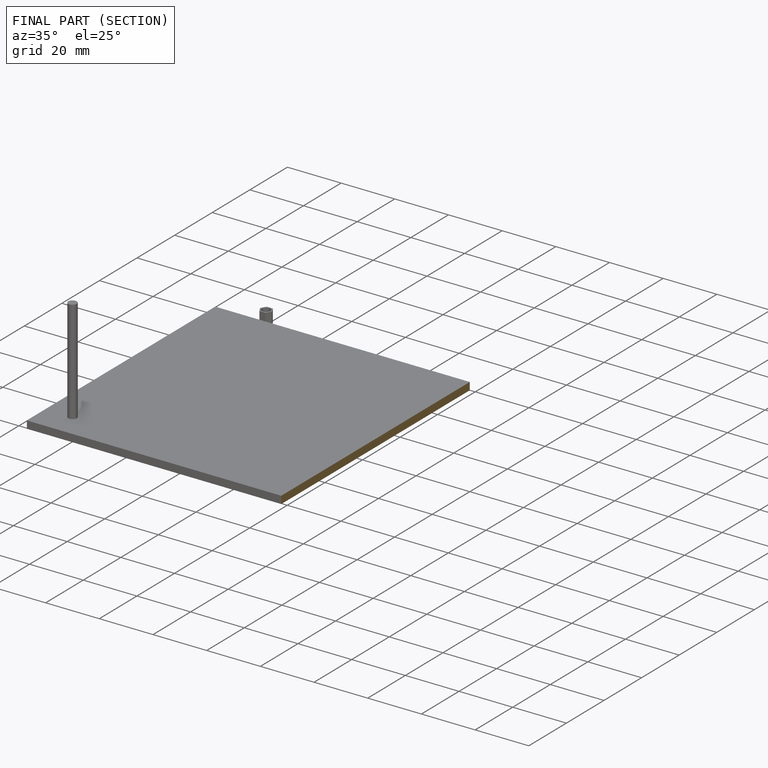
[diagram: finished part — half-section view (interior)]
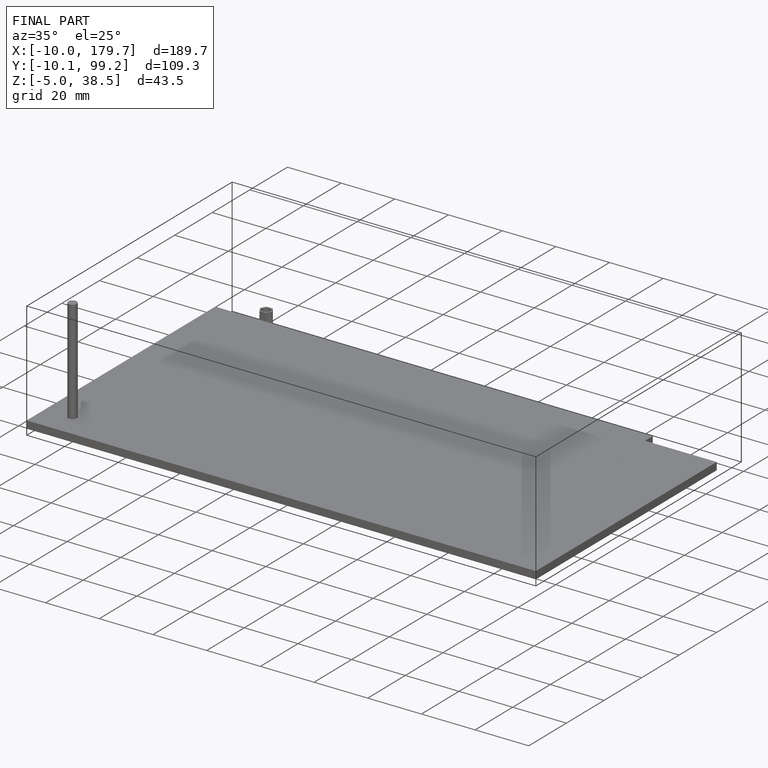
[diagram: finished part — iso view with bounding-box wireframe]
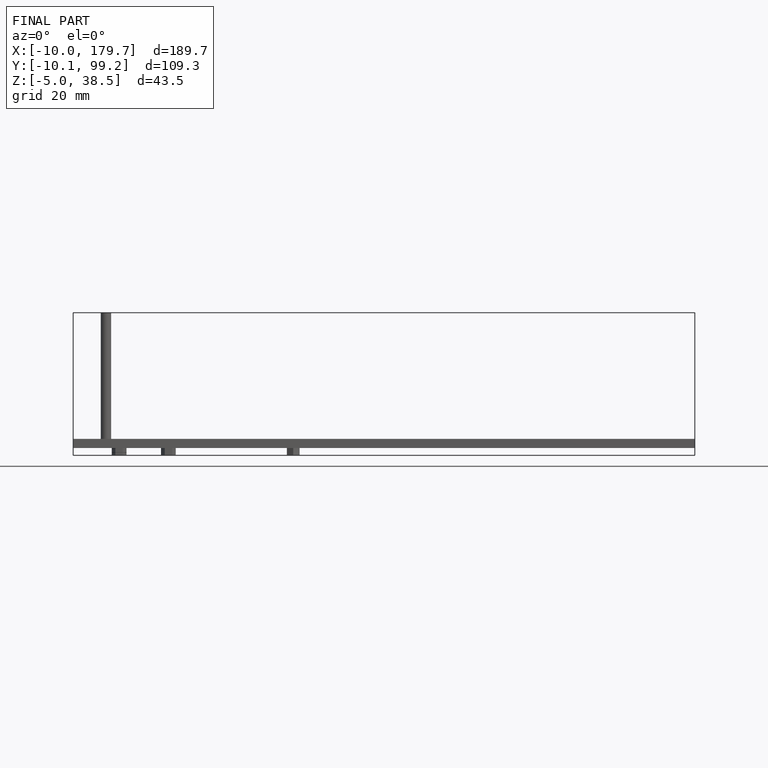
[diagram: finished part — front view with bounding-box wireframe]
